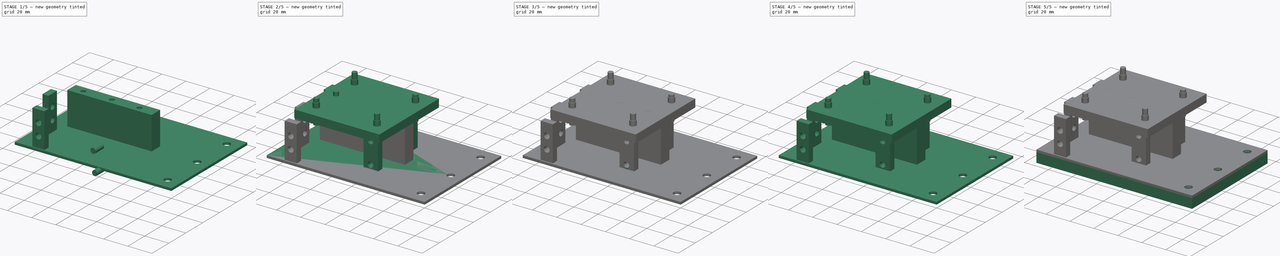
[diagram: build sequence overview — one tinted view per stage of 5, left to right]
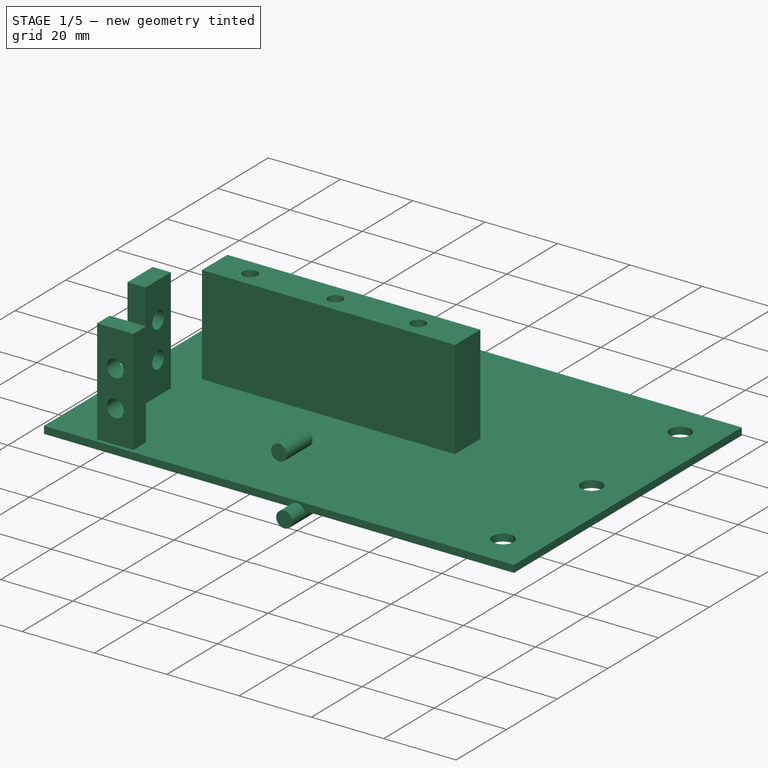
[diagram: stage 1 of 5 — iso view after this stage's code; geometry added in this stage tinted green]
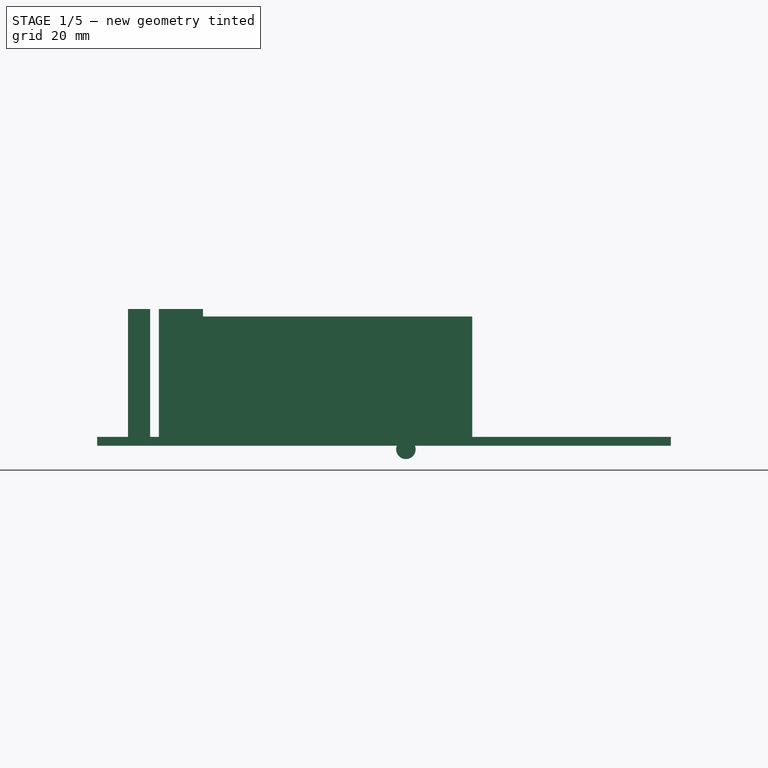
[diagram: stage 1 of 5 — front view after this stage's code; geometry added in this stage tinted green]
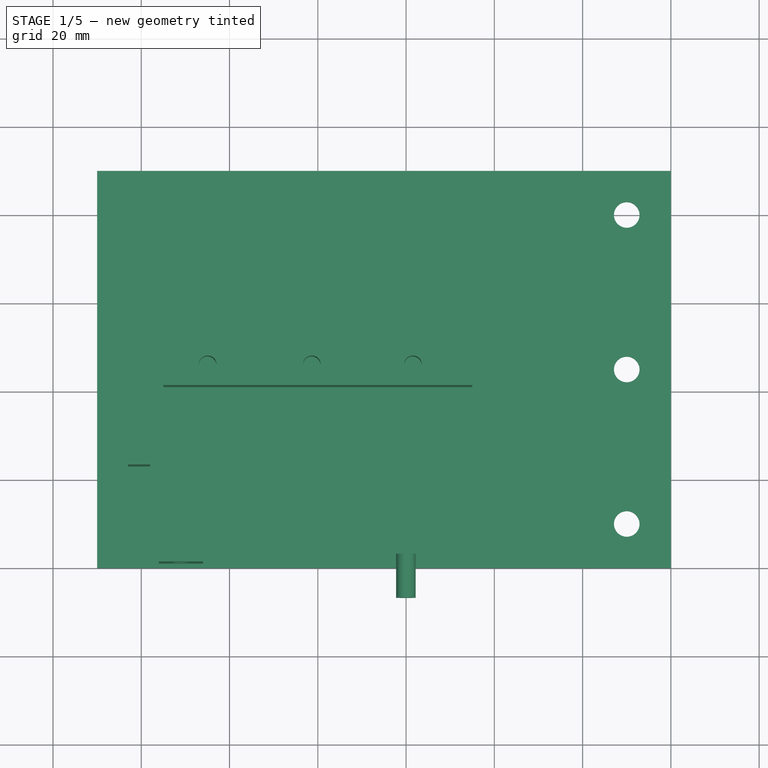
[diagram: stage 1 of 5 — top view after this stage's code; geometry added in this stage tinted green]
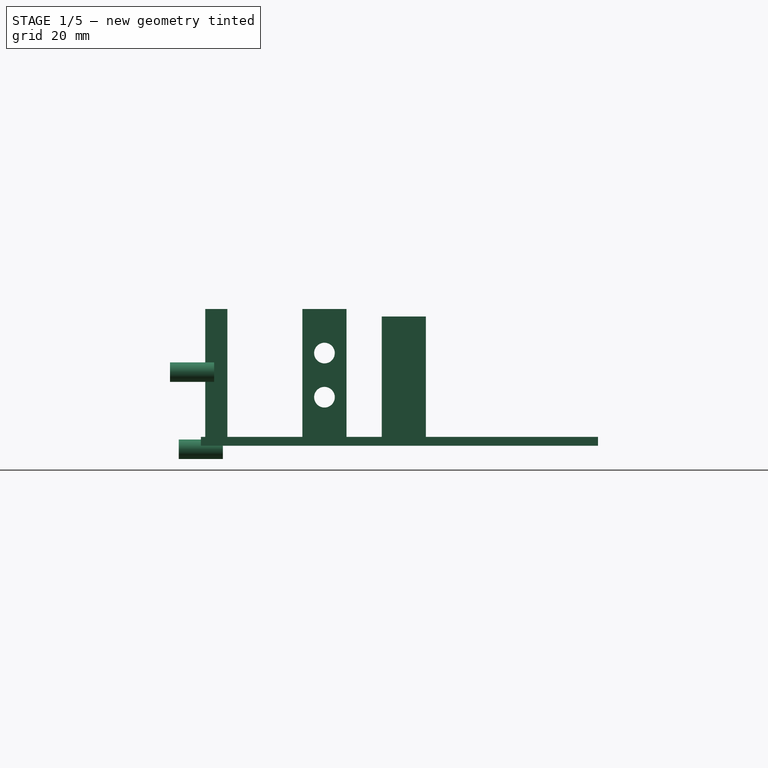
[diagram: stage 1 of 5 — right view after this stage's code; geometry added in this stage tinted green]
FCSTD DOCUMENT  (FreeCAD 0.20R29410 (Git))
Label: Base trasera
License: Creative Commons Attribution-ShareAlike
LicenseURL: http://creativecommons.org/licenses/by-sa/4.0/
objects: Part::Extrusion×70, Sketcher::SketchObject×49, Part::Cut×45, Part::MultiFuse×25
note: 189 computed .brp shape members not serialized (recipe doc carries the construction recipe); baked Part::Feature solids carry a one-line shape summary decoded from their .brp

FEATURE [Sketcher::SketchObject] Sketch
  FullyConstrained = false
  sketch-geometry (4):
    g0: LineSegment StartX=0 StartY=0 StartZ=0 EndX=130 EndY=0 EndZ=0
    g1: LineSegment StartX=130 StartY=0 StartZ=0 EndX=130 EndY=90 EndZ=0
    g2: LineSegment StartX=130 StartY=90 StartZ=0 EndX=0 EndY=90 EndZ=0
    g3: LineSegment StartX=0 StartY=90 StartZ=0 EndX=0 EndY=0 EndZ=0
  constraints (9):
    c: Coincident(g0,g1)
    c: Coincident(g1,g2)
    c: Coincident(g2,g3)
    c: Coincident(g3,g0)
    c: Horizontal(g0)
    c: Horizontal(g2)
    c: Vertical(g1)
    c: Vertical(g3)
    c: Coincident(g0,g-1)
FEATURE [Part::Extrusion] Extrude  label="Base trasera"
  Base = -> Sketch
  Dir = (0,0,1)
  DirMode = 2
  FaceMakerClass = Part::FaceMakerBullseye
  LengthFwd = 10
  LengthRev = 0
  Solid = true
  Symmetric = false
FEATURE [Sketcher::SketchObject] Sketch004
  FullyConstrained = false
  MapMode = 5
  Placement = pos=(0,0,10) rot=(0,0,1;0rad)
  Support = -> [Extrude]
  sketch-geometry (4):
    g0: LineSegment StartX=120 StartY=80.0205 StartZ=0 EndX=120 EndY=10 EndZ=0
    g1: Circle CenterX=120 CenterY=80.0205 CenterZ=0 NormalX=0 NormalY=0 NormalZ=1 AngleXU=0 Radius=2.9
    g2: Circle CenterX=120 CenterY=45.0103 CenterZ=0 NormalX=0 NormalY=0 NormalZ=1 AngleXU=0 Radius=2.9
    g3: Circle CenterX=120 CenterY=10 CenterZ=0 NormalX=0 NormalY=0 NormalZ=1 AngleXU=0 Radius=2.9
  constraints (7):
    c: Vertical(g0)
    c: Coincident(g1,g0)
    c: Coincident(g3,g0)
    c: Symmetric(g0,g0,g2)
    c: Diameter(g1) = 5.8
    c: Equal(g1,g2)
    c: Equal(g2,g3)
FEATURE [Part::Extrusion] Extrude006  label="Tornillos"
  Base = -> Sketch004
  Dir = (0,0,1)
  DirMode = 2
  FaceMakerClass = Part::FaceMakerBullseye
  LengthFwd = 50
  LengthRev = 0
  Placement = pos=(0,0,-31) rot=(0,0,1;0rad)
  Solid = true
  Symmetric = false
FEATURE [Part::Cut] Cut  label="Base trasera001"
  Base = -> Extrude
  Placement = pos=(-110,0,-2) rot=(0,0,1;0rad)
  Refine = true
  Tool = -> Extrude006
FEATURE [Sketcher::SketchObject] Sketch014
  FullyConstrained = false
  Placement = pos=(0,0,0) rot=(1,0,0;1.5708rad)
  sketch-geometry (8):
    g0: LineSegment StartX=-100 StartY=10 StartZ=0 EndX=-100 EndY=37.3557 EndZ=0
    g1: LineSegment StartX=-100 StartY=37.3557 StartZ=0 EndX=-130 EndY=37.3557 EndZ=0
    g2: LineSegment StartX=-130 StartY=37.3557 StartZ=0 EndX=-130 EndY=43.9132 EndZ=0
    g3: LineSegment StartX=-130 StartY=43.9132 StartZ=0 EndX=-60 EndY=43.9132 EndZ=0
    g4: LineSegment StartX=-60 StartY=43.9132 StartZ=0 EndX=-60 EndY=37.3557 EndZ=0
    g5: LineSegment StartX=-60 StartY=37.3557 StartZ=0 EndX=-90 EndY=37.3557 EndZ=0
    g6: LineSegment StartX=-90 StartY=37.3557 StartZ=0 EndX=-90 EndY=10 EndZ=0
    g7: LineSegment StartX=-90 StartY=10 StartZ=0 EndX=-100 EndY=10 EndZ=0
  constraints (17):
    c: Vertical(g0)
    c: Coincident(g1,g0)
    c: Horizontal(g1)
    c: Coincident(g1,g2)
    c: Vertical(g2)
    c: Coincident(g2,g3)
    c: Horizontal(g3)
    c: Coincident(g3,g4)
    c: Vertical(g4)
    c: Coincident(g4,g5)
    c: Horizontal(g5)
    c: Coincident(g5,g6)
    c: Vertical(g6)
    c: Coincident(g6,g7)
    c: Coincident(g7,g0)
    c: Horizontal(g7)
    c: Equal(g6,g0)
FEATURE [Part::Extrusion] Extrude013  label="Base placa roja"
  Base = -> Sketch014
  Dir = (0,-1,-3e-16)
  DirMode = 2
  FaceMakerClass = Part::FaceMakerBullseye
  LengthFwd = 70
  LengthRev = 0
  Placement = pos=(-25,-49,-2) rot=(0,0,-1;1.5708rad)
  Solid = true
  Symmetric = false
FEATURE [Part::MultiFuse] Fusion  label="Base trasera002"
  Refine = true
  Shapes = -> [Cut,Extrude013]
FEATURE [Sketcher::SketchObject] Sketch015
  FullyConstrained = false
  MapMode = 5
  Placement = pos=(-1.38e-14,0,41.9132) rot=(0,0,1;0rad)
  Support = -> [Fusion]
  sketch-geometry (4):
    g0: Circle CenterX=-84.9863 CenterY=67.434 CenterZ=0 NormalX=0 NormalY=0 NormalZ=1 AngleXU=0 Radius=2.5
    g1: Circle CenterX=-85.0131 CenterY=22.4995 CenterZ=0 NormalX=0 NormalY=0 NormalZ=1 AngleXU=0 Radius=2.5
    g2: Circle CenterX=-35.0242 CenterY=22.5424 CenterZ=0 NormalX=0 NormalY=0 NormalZ=1 AngleXU=0 Radius=2.5
    g3: Circle CenterX=-34.9105 CenterY=67.5989 CenterZ=0 NormalX=0 NormalY=0 NormalZ=1 AngleXU=0 Radius=2.5
  constraints (4):
    c: Equal(g0,g1)
    c: Equal(g1,g2)
    c: Equal(g2,g3)
    c: Diameter(g0) = 5
FEATURE [Part::Extrusion] Extrude014  label="Tornillos004"
  Base = -> Sketch015
  Dir = (-3e-16,0,1)
  DirMode = 2
  FaceMakerClass = Part::FaceMakerBullseye
  LengthFwd = 8
  LengthRev = 0
  Placement = pos=(0,0,-4) rot=(0,0,1;0rad)
  Solid = true
  Symmetric = false
FEATURE [Part::MultiFuse] Fusion001
  Refine = true
  Shapes = -> [Extrude014,Fusion]
FEATURE [Sketcher::SketchObject] Sketch059
  FullyConstrained = false
  Placement = pos=(0,0,0) rot=(0.57735,0.57735,0.57735;2.0944rad)
  sketch-geometry (4):
    g0: LineSegment StartX=-15.4009 StartY=8.53528 StartZ=0 EndX=-5.40092 EndY=8.53528 EndZ=0
    g1: LineSegment StartX=-5.40092 StartY=8.53528 StartZ=0 EndX=-5.40092 EndY=35.8953 EndZ=0
    g2: LineSegment StartX=-5.40092 StartY=35.8953 StartZ=0 EndX=-15.4009 EndY=35.8953 EndZ=0
    g3: LineSegment StartX=-15.4009 StartY=35.8953 StartZ=0 EndX=-15.4009 EndY=8.53528 EndZ=0
  constraints (9):
    c: Coincident(g0,g1)
    c: Coincident(g1,g2)
    c: Coincident(g2,g3)
    c: Coincident(g3,g0)
    c: Horizontal(g0)
    c: Horizontal(g2)
    c: Vertical(g1)
    c: Vertical(g3)
    c: DistanceY(g1,g1) = 27.36
FEATURE [Part::Extrusion] Extrude065
  Base = -> Sketch059
  Dir = (1,0,0)
  DirMode = 2
  FaceMakerClass = Part::FaceMakerBullseye
  LengthFwd = 70
  LengthRev = 0
  Placement = pos=(-95,56.4,-0.3) rot=(0,0,1;0rad)
  Solid = true
  Symmetric = false
FEATURE [Part::Extrusion] Extrude075  label="Tornillo016"
  Base = -> Sketch016
  Dir = (-3e-16,0,1)
  DirMode = 2
  FaceMakerClass = Part::FaceMakerBullseye
  LengthFwd = 20
  LengthRev = 0
  Placement = pos=(0,-21.8,-26) rot=(0,0,1;0rad)
  Solid = true
  Symmetric = false
FEATURE [Part::Extrusion] Extrude076  label="Tornillo017"
  Base = -> Sketch016
  Dir = (-3e-16,0,1)
  DirMode = 2
  FaceMakerClass = Part::FaceMakerBullseye
  LengthFwd = 20
  LengthRev = 0
  Placement = pos=(23.6,-21.8,-25.9) rot=(0,0,1;0rad)
  Solid = true
  Symmetric = false
FEATURE [Part::Extrusion] Extrude077  label="Tornillo018"
  Base = -> Sketch016
  Dir = (-3e-16,0,1)
  DirMode = 2
  FaceMakerClass = Part::FaceMakerBullseye
  LengthFwd = 20
  LengthRev = 0
  Placement = pos=(46.5,-21.8,-26) rot=(0,0,1;0rad)
  Solid = true
  Symmetric = false
FEATURE [Part::Cut] Cut043
  Base = -> Extrude065
  Refine = true
  Tool = -> Extrude075
FEATURE [Part::Cut] Cut044
  Base = -> Cut043
  Refine = true
  Tool = -> Extrude076
FEATURE [Part::Cut] Cut045  label="BBBBBBBBB"
  Base = -> Cut044
  Placement = pos=(0,0,-0.3) rot=(0,0,1;0rad)
  Refine = true
  Tool = -> Extrude077
FEATURE [Sketcher::SketchObject] Sketch066
  FullyConstrained = false
  Placement = pos=(0,0,0) rot=(1,0,0;1.5708rad)
  sketch-geometry (4):
    g0: LineSegment StartX=-140 StartY=10 StartZ=0 EndX=-130 EndY=10 EndZ=0
    g1: LineSegment StartX=-130 StartY=10 StartZ=0 EndX=-130 EndY=40 EndZ=0
    g2: LineSegment StartX=-130 StartY=40 StartZ=0 EndX=-140 EndY=40 EndZ=0
    g3: LineSegment StartX=-140 StartY=40 StartZ=0 EndX=-140 EndY=10 EndZ=0
  constraints (8):
    c: Coincident(g0,g1)
    c: Coincident(g1,g2)
    c: Coincident(g2,g3)
    c: Coincident(g3,g0)
    c: Horizontal(g0)
    c: Horizontal(g2)
    c: Vertical(g1)
    c: Vertical(g3)
FEATURE [Part::Extrusion] Extrude082  label="Soporte017"
  Base = -> Sketch066
  Dir = (0,-1,-3e-16)
  DirMode = 2
  FaceMakerClass = Part::FaceMakerBullseye
  LengthFwd = 5
  LengthRev = 0
  Placement = pos=(-96,-107,0) rot=(0,0,-1;1.5708rad)
  Solid = true
  Symmetric = false
FEATURE [Sketcher::SketchObject] Sketch067
  FullyConstrained = false
  MapMode = 5
  Placement = pos=(-101,-107,-1.1e-15) rot=(0.57735,-0.57735,-0.57735;2.0944rad)
  Support = -> [Extrude082]
  sketch-geometry (4):
    g0: LineSegment StartX=-140.012 StartY=30 StartZ=0 EndX=-130 EndY=30 EndZ=0
    g1: Circle CenterX=-135.006 CenterY=30 CenterZ=0 NormalX=0 NormalY=0 NormalZ=1 AngleXU=0 Radius=2.34
    g2: LineSegment StartX=-140 StartY=20 StartZ=0 EndX=-130.017 EndY=20 EndZ=0
    g3: Circle CenterX=-135.008 CenterY=20 CenterZ=0 NormalX=0 NormalY=0 NormalZ=1 AngleXU=0 Radius=2.34
  constraints (6):
    c: Horizontal(g0)
    c: Symmetric(g0,g0,g1)
    c: Horizontal(g2)
    c: Symmetric(g2,g2,g3)
    c: Equal(g1,g3)
    c: Diameter(g3) = 4.68
FEATURE [Part::Extrusion] Extrude083  label="Tornillos016"
  Base = -> Sketch067
  Dir = (-1,2e-16,-2e-16)
  DirMode = 2
  FaceMakerClass = Part::FaceMakerBullseye
  LengthFwd = 20
  LengthRev = 0
  Placement = pos=(17,0,0) rot=(0,0,1;0rad)
  Solid = true
  Symmetric = false
FEATURE [Part::Cut] Cut053  label="Soporte014"
  Base = -> Extrude082
  Placement = pos=(-2,0,-3) rot=(0,0,1;0rad)
  Refine = true
  Tool = -> Extrude083
FEATURE [Sketcher::SketchObject] Sketch070
  FullyConstrained = false
  Placement = pos=(0,0,0) rot=(1,0,0;1.5708rad)
  sketch-geometry (4):
    g0: LineSegment StartX=-140 StartY=10 StartZ=0 EndX=-130 EndY=10 EndZ=0
    g1: LineSegment StartX=-130 StartY=10 StartZ=0 EndX=-130 EndY=40 EndZ=0
    g2: LineSegment StartX=-130 StartY=40 StartZ=0 EndX=-140 EndY=40 EndZ=0
    g3: LineSegment StartX=-140 StartY=40 StartZ=0 EndX=-140 EndY=10 EndZ=0
  constraints (8):
    c: Coincident(g0,g1)
    c: Coincident(g1,g2)
    c: Coincident(g2,g3)
    c: Coincident(g3,g0)
    c: Horizontal(g0)
    c: Horizontal(g2)
    c: Vertical(g1)
    c: Vertical(g3)
FEATURE [Part::Extrusion] Extrude086  label="Soporte019"
  Base = -> Sketch070
  Dir = (0,-1,-3e-16)
  DirMode = 2
  FaceMakerClass = Part::FaceMakerBullseye
  LengthFwd = 5
  LengthRev = 0
  Placement = pos=(-96,-107,0) rot=(0,0,-1;1.5708rad)
  Solid = true
  Symmetric = false
FEATURE [Sketcher::SketchObject] Sketch071
  FullyConstrained = false
  MapMode = 5
  Placement = pos=(-101,-107,-1.1e-15) rot=(0.57735,-0.57735,-0.57735;2.0944rad)
  Support = -> [Extrude086]
  sketch-geometry (4):
    g0: LineSegment StartX=-140.012 StartY=30 StartZ=0 EndX=-130 EndY=30 EndZ=0
    g1: Circle CenterX=-135.006 CenterY=30 CenterZ=0 NormalX=0 NormalY=0 NormalZ=1 AngleXU=0 Radius=2.34
    g2: LineSegment StartX=-140 StartY=20 StartZ=0 EndX=-130.017 EndY=20 EndZ=0
    g3: Circle CenterX=-135.008 CenterY=20 CenterZ=0 NormalX=0 NormalY=0 NormalZ=1 AngleXU=0 Radius=2.34
  constraints (6):
    c: Horizontal(g0)
    c: Symmetric(g0,g0,g1)
    c: Horizontal(g2)
    c: Symmetric(g2,g2,g3)
    c: Equal(g1,g3)
    c: Diameter(g3) = 4.68
FEATURE [Part::Extrusion] Extrude087  label="Tornillos018"
  Base = -> Sketch071
  Dir = (-1,2e-16,-2e-16)
  DirMode = 2
  FaceMakerClass = Part::FaceMakerBullseye
  LengthFwd = 20
  LengthRev = 0
  Placement = pos=(17,0,0) rot=(0,0,1;0rad)
  Solid = true
  Symmetric = false
FEATURE [Part::Cut] Cut052  label="Soporte013"
  Base = -> Extrude086
  Placement = pos=(-119,-95,-3) rot=(0,0,-1;1.5708rad)
  Refine = true
  Tool = -> Extrude087
FEATURE [Sketcher::SketchObject] Sketch074
  FullyConstrained = false
  sketch-geometry (4):
    g0: LineSegment StartX=0 StartY=0 StartZ=0 EndX=130 EndY=0 EndZ=0
    g1: LineSegment StartX=130 StartY=0 StartZ=0 EndX=130 EndY=90 EndZ=0
    g2: LineSegment StartX=130 StartY=90 StartZ=0 EndX=0 EndY=90 EndZ=0
    g3: LineSegment StartX=0 StartY=90 StartZ=0 EndX=0 EndY=0 EndZ=0
  constraints (9):
    c: Coincident(g0,g1)
    c: Coincident(g1,g2)
    c: Coincident(g2,g3)
    c: Coincident(g3,g0)
    c: Horizontal(g0)
    c: Horizontal(g2)
    c: Vertical(g1)
    c: Vertical(g3)
    c: Coincident(g0,g-1)
FEATURE [Part::Extrusion] Extrude090  label="Base trasera009"
  Base = -> Sketch074
  Dir = (0,0,1)
  DirMode = 2
  FaceMakerClass = Part::FaceMakerBullseye
  LengthFwd = 2
  LengthRev = 0
  Solid = true
  Symmetric = false
FEATURE [Sketcher::SketchObject] Sketch075
  FullyConstrained = false
  MapMode = 5
  Placement = pos=(0,0,2) rot=(0,0,1;0rad)
  Support = -> [Extrude090]
  sketch-geometry (4):
    g0: LineSegment StartX=120 StartY=80.0205 StartZ=0 EndX=120 EndY=10 EndZ=0
    g1: Circle CenterX=120 CenterY=80.0205 CenterZ=0 NormalX=0 NormalY=0 NormalZ=1 AngleXU=0 Radius=2.9
    g2: Circle CenterX=120 CenterY=45.0103 CenterZ=0 NormalX=0 NormalY=0 NormalZ=1 AngleXU=0 Radius=2.9
    g3: Circle CenterX=120 CenterY=10 CenterZ=0 NormalX=0 NormalY=0 NormalZ=1 AngleXU=0 Radius=2.9
  constraints (7):
    c: Vertical(g0)
    c: Coincident(g1,g0)
    c: Coincident(g3,g0)
    c: Symmetric(g0,g0,g2)
    c: Diameter(g1) = 5.8
    c: Equal(g1,g2)
    c: Equal(g2,g3)
FEATURE [Part::Extrusion] Extrude091  label="Tornillos020"
  Base = -> Sketch075
  Dir = (0,0,1)
  DirMode = 2
  FaceMakerClass = Part::FaceMakerBullseye
  LengthFwd = 50
  LengthRev = 0
  Placement = pos=(0,0,-31) rot=(0,0,1;0rad)
  Solid = true
  Symmetric = false
FEATURE [Part::Cut] Cut047  label="Base trasera007"
  Base = -> Extrude090
  Placement = pos=(-110,0,6) rot=(0,0,1;0rad)
  Refine = true
  Tool = -> Extrude091
FEATURE [Sketcher::SketchObject] Sketch078
  FullyConstrained = false
  Placement = pos=(0,0,0) rot=(1,0,0;1.5708rad)
  sketch-geometry (1):
    g0: Circle CenterX=-30.2422 CenterY=20.0161 CenterZ=0 NormalX=0 NormalY=0 NormalZ=1 AngleXU=0 Radius=2.21
  constraints (1):
    c: Diameter(g0) = 4.42
FEATURE [Part::Extrusion] Extrude099
  Base = -> Sketch078
  Dir = (0,-1,-3e-16)
  DirMode = 2
  FaceMakerClass = Part::FaceMakerBullseye
  LengthFwd = 10
  LengthRev = 0
  Placement = pos=(-9.8,3,2.68) rot=(0,0,1;0rad)
  Solid = true
  Symmetric = false
FEATURE [Sketcher::SketchObject] Sketch079
  FullyConstrained = false
  Placement = pos=(0,0,0) rot=(1,0,0;1.5708rad)
  sketch-geometry (1):
    g0: Circle CenterX=-30.2422 CenterY=20.0161 CenterZ=0 NormalX=0 NormalY=0 NormalZ=1 AngleXU=0 Radius=2.21
  constraints (1):
    c: Diameter(g0) = 4.42
FEATURE [Part::Extrusion] Extrude100
  Base = -> Sketch079
  Dir = (0,-1,-3e-16)
  DirMode = 2
  FaceMakerClass = Part::FaceMakerBullseye
  LengthFwd = 10
  LengthRev = 0
  Placement = pos=(-9.8,5,-14.82) rot=(0,0,1;0rad)
  Solid = true
  Symmetric = false
FEATURE [Part::MultiFuse] Fusion019
  Refine = true
  Shapes = -> [Cut047,Cut045]
FEATURE [Part::MultiFuse] Fusion020
  Refine = true
  Shapes = -> [Fusion019,Cut053]
FEATURE [Part::MultiFuse] Fusion021
  Refine = true
  Shapes = -> [Fusion020,Cut052]
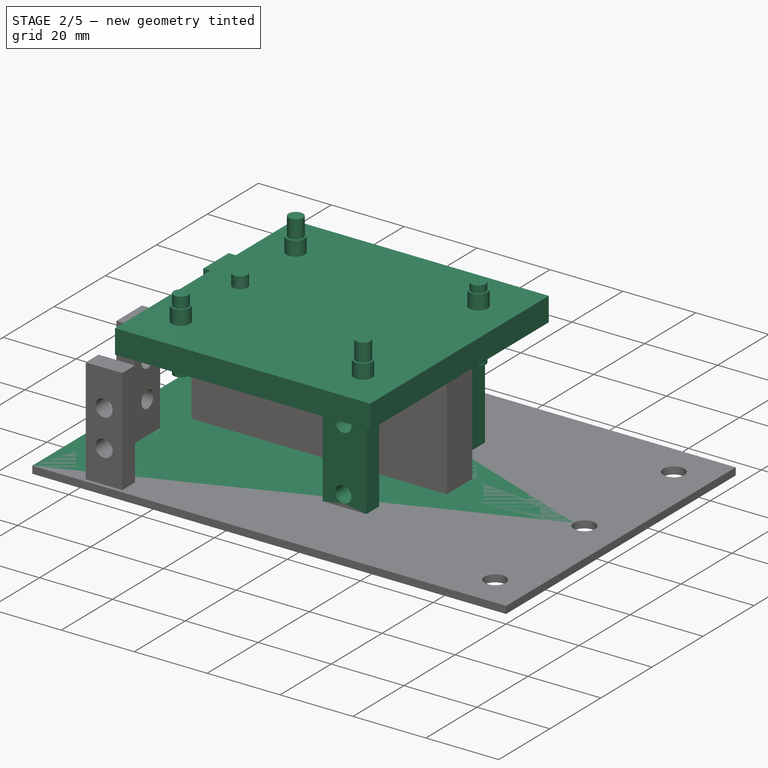
[diagram: stage 2 of 5 — iso view after this stage's code; geometry added in this stage tinted green]
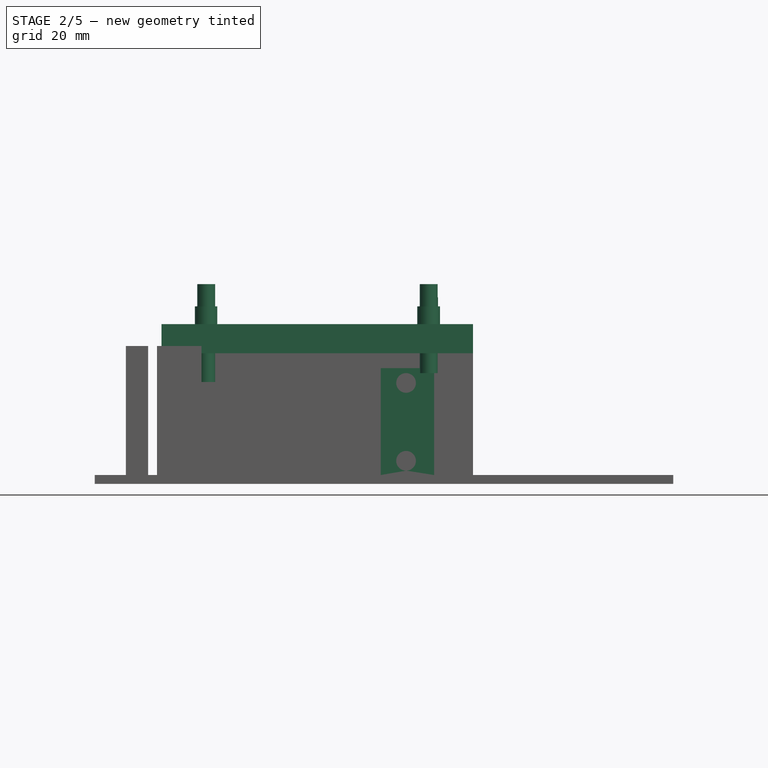
[diagram: stage 2 of 5 — front view after this stage's code; geometry added in this stage tinted green]
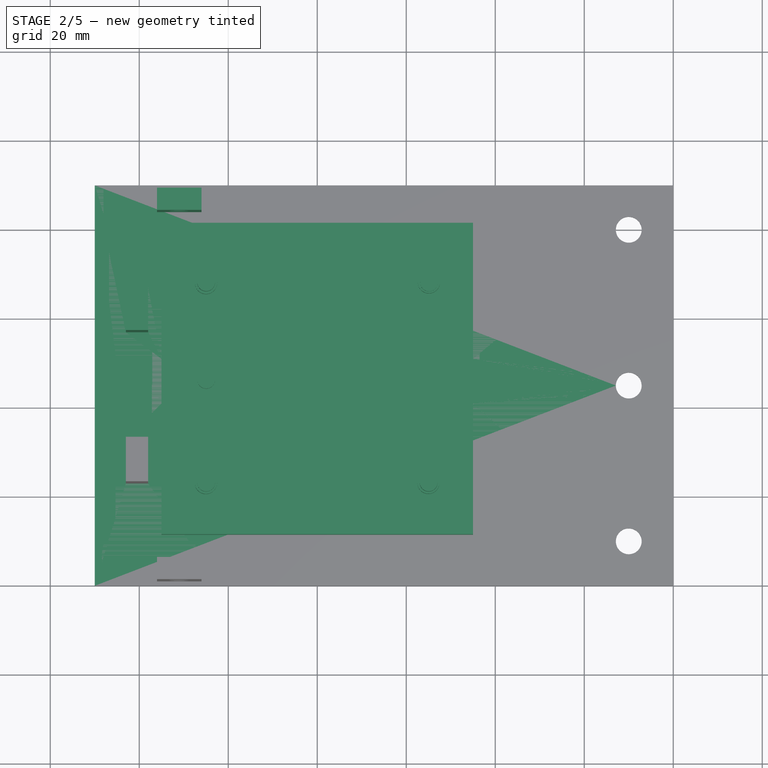
[diagram: stage 2 of 5 — top view after this stage's code; geometry added in this stage tinted green]
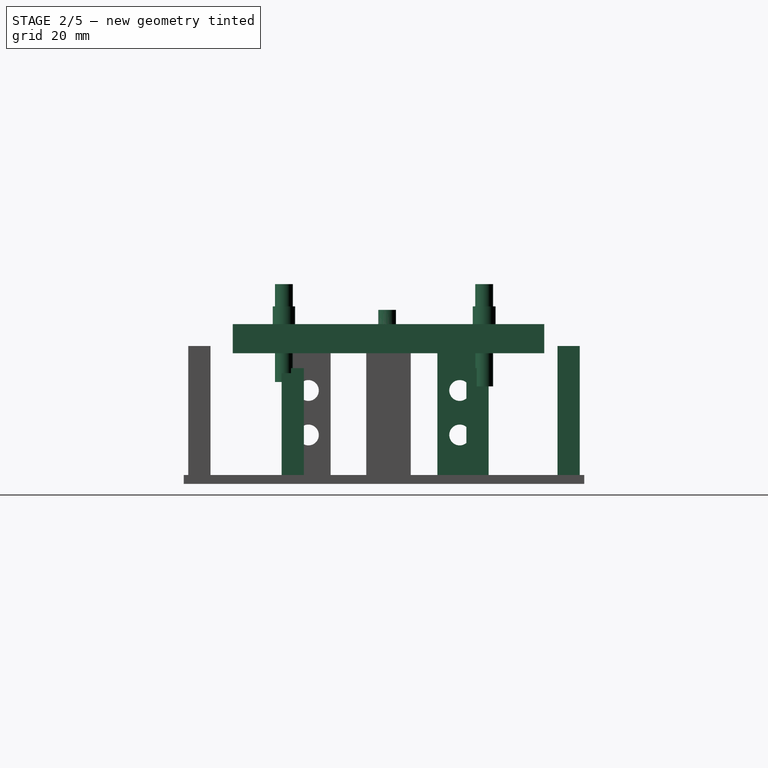
[diagram: stage 2 of 5 — right view after this stage's code; geometry added in this stage tinted green]
FEATURE [Sketcher::SketchObject] Sketch049
  FullyConstrained = false
  sketch-geometry (4):
    g0: LineSegment StartX=0 StartY=0 StartZ=0 EndX=130 EndY=0 EndZ=0
    g1: LineSegment StartX=130 StartY=0 StartZ=0 EndX=130 EndY=90 EndZ=0
    g2: LineSegment StartX=130 StartY=90 StartZ=0 EndX=0 EndY=90 EndZ=0
    g3: LineSegment StartX=0 StartY=90 StartZ=0 EndX=0 EndY=0 EndZ=0
  constraints (9):
    c: Coincident(g0,g1)
    c: Coincident(g1,g2)
    c: Coincident(g2,g3)
    c: Coincident(g3,g0)
    c: Horizontal(g0)
    c: Horizontal(g2)
    c: Vertical(g1)
    c: Vertical(g3)
    c: Coincident(g0,g-1)
FEATURE [Sketcher::SketchObject] Sketch050
  FullyConstrained = false
  sketch-geometry (4):
    g0: LineSegment StartX=0 StartY=0 StartZ=0 EndX=130 EndY=0 EndZ=0
    g1: LineSegment StartX=130 StartY=0 StartZ=0 EndX=130 EndY=90 EndZ=0
    g2: LineSegment StartX=130 StartY=90 StartZ=0 EndX=0 EndY=90 EndZ=0
    g3: LineSegment StartX=0 StartY=90 StartZ=0 EndX=0 EndY=0 EndZ=0
  constraints (9):
    c: Coincident(g0,g1)
    c: Coincident(g1,g2)
    c: Coincident(g2,g3)
    c: Coincident(g3,g0)
    c: Horizontal(g0)
    c: Horizontal(g2)
    c: Vertical(g1)
    c: Vertical(g3)
    c: Coincident(g0,g-1)
FEATURE [Part::Extrusion] Extrude051  label="Base trasera005"
  Base = -> Sketch050
  Dir = (0,0,1)
  DirMode = 2
  FaceMakerClass = Part::FaceMakerBullseye
  LengthFwd = 2
  LengthRev = 0
  Solid = true
  Symmetric = false
FEATURE [Part::Extrusion] Extrude072  label="Tornillo013"
  Base = -> Sketch016
  Dir = (-3e-16,0,1)
  DirMode = 2
  FaceMakerClass = Part::FaceMakerBullseye
  LengthFwd = 20
  LengthRev = 0
  Placement = pos=(0,-21.8,-20.8) rot=(0,0,1;0rad)
  Solid = true
  Symmetric = false
FEATURE [Part::Extrusion] Extrude052  label="Tornillos011"
  Base = -> Sketch051
  Dir = (0,0,1)
  DirMode = 2
  FaceMakerClass = Part::FaceMakerBullseye
  LengthFwd = 50
  LengthRev = 0
  Placement = pos=(0,0,-31) rot=(0,0,1;0rad)
  Solid = true
  Symmetric = false
FEATURE [Part::Cut] Cut021  label="Base trasera004"
  Base = -> Extrude051
  Placement = pos=(-110,0,6) rot=(0,0,1;0rad)
  Refine = true
  Tool = -> Extrude052
FEATURE [Part::Extrusion] Extrude053  label="Base placa roja001"
  Base = -> Sketch052
  Dir = (0,-1,2e-16)
  DirMode = 2
  FaceMakerClass = Part::FaceMakerBullseye
  LengthFwd = 70
  LengthRev = 0
  Placement = pos=(-25,-49,-2) rot=(0,0,-1;1.5708rad)
  Solid = true
  Symmetric = false
FEATURE [Sketcher::SketchObject] Sketch064
  FullyConstrained = false
  MapMode = 5
  Placement = pos=(-1.38e-14,0,41.9132) rot=(0,0,1;0rad)
  sketch-geometry (4):
    g0: Circle CenterX=-84.9863 CenterY=67.434 CenterZ=0 NormalX=0 NormalY=0 NormalZ=1 AngleXU=0 Radius=2.5
    g1: Circle CenterX=-85.0131 CenterY=22.4995 CenterZ=0 NormalX=0 NormalY=0 NormalZ=1 AngleXU=0 Radius=2.5
    g2: Circle CenterX=-35.0242 CenterY=22.5424 CenterZ=0 NormalX=0 NormalY=0 NormalZ=1 AngleXU=0 Radius=2.5
    g3: Circle CenterX=-34.9105 CenterY=67.5989 CenterZ=0 NormalX=0 NormalY=0 NormalZ=1 AngleXU=0 Radius=2.5
  constraints (4):
    c: Equal(g0,g1)
    c: Equal(g1,g2)
    c: Equal(g2,g3)
    c: Diameter(g0) = 5
FEATURE [Part::Extrusion] Extrude093  label="Tornillos021"
  Base = -> Sketch064
  Dir = (-3e-16,0,1)
  DirMode = 2
  FaceMakerClass = Part::FaceMakerBullseye
  LengthFwd = 8
  LengthRev = 0
  Placement = pos=(0,0,-4) rot=(0,0,1;0rad)
  Solid = true
  Symmetric = false
FEATURE [Sketcher::SketchObject] Sketch065
  FullyConstrained = false
  MapMode = 5
  Placement = pos=(-1.29e-14,0,45.9132) rot=(0,0,1;0rad)
  sketch-geometry (1):
    g0: Circle CenterX=-84.9626 CenterY=67.5048 CenterZ=0 NormalX=0 NormalY=0 NormalZ=1 AngleXU=0 Radius=2.005
  constraints (1):
    c: Diameter(g0) = 4.01
FEATURE [Part::Extrusion] Extrude094  label="Tornillo019"
  Base = -> Sketch065
  Dir = (-3e-16,0,1)
  DirMode = 2
  FaceMakerClass = Part::FaceMakerBullseye
  LengthFwd = 20
  LengthRev = 0
  Placement = pos=(50.1,0,-18) rot=(0,0,1;0rad)
  Solid = true
  Symmetric = false
FEATURE [Part::Extrusion] Extrude095  label="Tornillo020"
  Base = -> Sketch065
  Dir = (-3e-16,0,1)
  DirMode = 2
  FaceMakerClass = Part::FaceMakerBullseye
  LengthFwd = 20
  LengthRev = 0
  Placement = pos=(0,0,-15) rot=(0,0,1;0rad)
  Solid = true
  Symmetric = false
FEATURE [Part::Extrusion] Extrude096  label="Tornillo021"
  Base = -> Sketch065
  Dir = (-3e-16,0,1)
  DirMode = 2
  FaceMakerClass = Part::FaceMakerBullseye
  LengthFwd = 20
  LengthRev = 0
  Placement = pos=(50,-45,-15) rot=(0,0,1;0rad)
  Solid = true
  Symmetric = false
FEATURE [Part::Extrusion] Extrude097  label="Tornillo022"
  Base = -> Sketch065
  Dir = (-3e-16,0,1)
  DirMode = 2
  FaceMakerClass = Part::FaceMakerBullseye
  LengthFwd = 20
  LengthRev = 0
  Placement = pos=(0,-45,-17) rot=(0,0,1;0rad)
  Solid = true
  Symmetric = false
FEATURE [Sketcher::SketchObject] Sketch068
  FullyConstrained = false
  Placement = pos=(0,0,0) rot=(1,0,0;1.5708rad)
  sketch-geometry (4):
    g0: LineSegment StartX=-140 StartY=10 StartZ=0 EndX=-130 EndY=10 EndZ=0
    g1: LineSegment StartX=-130 StartY=10 StartZ=0 EndX=-130 EndY=40 EndZ=0
    g2: LineSegment StartX=-130 StartY=40 StartZ=0 EndX=-140 EndY=40 EndZ=0
    g3: LineSegment StartX=-140 StartY=40 StartZ=0 EndX=-140 EndY=10 EndZ=0
  constraints (8):
    c: Coincident(g0,g1)
    c: Coincident(g1,g2)
    c: Coincident(g2,g3)
    c: Coincident(g3,g0)
    c: Horizontal(g0)
    c: Horizontal(g2)
    c: Vertical(g1)
    c: Vertical(g3)
FEATURE [Part::Extrusion] Extrude084  label="Soporte018"
  Base = -> Sketch068
  Dir = (0,-1,-3e-16)
  DirMode = 2
  FaceMakerClass = Part::FaceMakerBullseye
  LengthFwd = 5
  LengthRev = 0
  Placement = pos=(-96,-107,0) rot=(0,0,-1;1.5708rad)
  Solid = true
  Symmetric = false
FEATURE [Sketcher::SketchObject] Sketch069
  FullyConstrained = false
  MapMode = 5
  Placement = pos=(-101,-107,-1.1e-15) rot=(0.57735,-0.57735,-0.57735;2.0944rad)
  Support = -> [Extrude084]
  sketch-geometry (4):
    g0: LineSegment StartX=-140.012 StartY=30 StartZ=0 EndX=-130 EndY=30 EndZ=0
    g1: Circle CenterX=-135.006 CenterY=30 CenterZ=0 NormalX=0 NormalY=0 NormalZ=1 AngleXU=0 Radius=2.34
    g2: LineSegment StartX=-140 StartY=20 StartZ=0 EndX=-130.017 EndY=20 EndZ=0
    g3: Circle CenterX=-135.008 CenterY=20 CenterZ=0 NormalX=0 NormalY=0 NormalZ=1 AngleXU=0 Radius=2.34
  constraints (6):
    c: Horizontal(g0)
    c: Symmetric(g0,g0,g1)
    c: Horizontal(g2)
    c: Symmetric(g2,g2,g3)
    c: Equal(g1,g3)
    c: Diameter(g3) = 4.68
FEATURE [Part::Extrusion] Extrude085  label="Tornillos017"
  Base = -> Sketch069
  Dir = (-1,2e-16,-2e-16)
  DirMode = 2
  FaceMakerClass = Part::FaceMakerBullseye
  LengthFwd = 20
  LengthRev = 0
  Placement = pos=(17,0,0) rot=(0,0,1;0rad)
  Solid = true
  Symmetric = false
FEATURE [Part::Cut] Cut054  label="Soporte015"
  Base = -> Extrude084
  Placement = pos=(-2,34,-3) rot=(0,0,1;0rad)
  Refine = true
  Tool = -> Extrude085
FEATURE [Sketcher::SketchObject] Sketch072
  FullyConstrained = false
  Placement = pos=(0,0,0) rot=(1,0,0;1.5708rad)
  sketch-geometry (4):
    g0: LineSegment StartX=-140 StartY=10 StartZ=0 EndX=-130 EndY=10 EndZ=0
    g1: LineSegment StartX=-130 StartY=10 StartZ=0 EndX=-130 EndY=40 EndZ=0
    g2: LineSegment StartX=-130 StartY=40 StartZ=0 EndX=-140 EndY=40 EndZ=0
    g3: LineSegment StartX=-140 StartY=40 StartZ=0 EndX=-140 EndY=10 EndZ=0
  constraints (8):
    c: Coincident(g0,g1)
    c: Coincident(g1,g2)
    c: Coincident(g2,g3)
    c: Coincident(g3,g0)
    c: Horizontal(g0)
    c: Horizontal(g2)
    c: Vertical(g1)
    c: Vertical(g3)
FEATURE [Part::Extrusion] Extrude088  label="Soporte020"
  Base = -> Sketch072
  Dir = (0,-1,2e-16)
  DirMode = 2
  FaceMakerClass = Part::FaceMakerBullseye
  LengthFwd = 5
  LengthRev = 0
  Placement = pos=(-96,-107,0) rot=(0,0,-1;1.5708rad)
  Solid = true
  Symmetric = false
FEATURE [Sketcher::SketchObject] Sketch073
  FullyConstrained = false
  MapMode = 5
  Placement = pos=(-101,-107,1.1e-15) rot=(0.57735,-0.57735,-0.57735;2.0944rad)
  Support = -> [Extrude088]
  sketch-geometry (4):
    g0: LineSegment StartX=-140.012 StartY=30 StartZ=0 EndX=-130 EndY=30 EndZ=0
    g1: Circle CenterX=-135.006 CenterY=30 CenterZ=0 NormalX=0 NormalY=0 NormalZ=1 AngleXU=0 Radius=2.34
    g2: LineSegment StartX=-140 StartY=20 StartZ=0 EndX=-130.017 EndY=20 EndZ=0
    g3: Circle CenterX=-135.008 CenterY=20 CenterZ=0 NormalX=0 NormalY=0 NormalZ=1 AngleXU=0 Radius=2.34
  constraints (6):
    c: Horizontal(g0)
    c: Symmetric(g0,g0,g1)
    c: Horizontal(g2)
    c: Symmetric(g2,g2,g3)
    c: Equal(g1,g3)
    c: Diameter(g3) = 4.68
FEATURE [Part::Extrusion] Extrude089  label="Tornillos019"
  Base = -> Sketch073
  Dir = (-1,-2e-16,2e-16)
  DirMode = 2
  FaceMakerClass = Part::FaceMakerBullseye
  LengthFwd = 20
  LengthRev = 0
  Placement = pos=(17,0,0) rot=(0,0,1;0rad)
  Solid = true
  Symmetric = false
FEATURE [Part::Cut] Cut055  label="Soporte016"
  Base = -> Extrude088
  Placement = pos=(-119,-12,-3) rot=(0,0,-1;1.5708rad)
  Refine = true
  Tool = -> Extrude089
FEATURE [Sketcher::SketchObject] Sketch077
  FullyConstrained = false
  Placement = pos=(0,0,0) rot=(1,0,0;1.5708rad)
  sketch-geometry (4):
    g0: LineSegment StartX=-45.7334 StartY=0 StartZ=0 EndX=-33.7334 EndY=0 EndZ=0
    g1: LineSegment StartX=-33.7334 StartY=0 StartZ=0 EndX=-33.7334 EndY=26.0118 EndZ=0
    g2: LineSegment StartX=-33.7334 StartY=26.0118 StartZ=0 EndX=-45.7334 EndY=26.0118 EndZ=0
    g3: LineSegment StartX=-45.7334 StartY=26.0118 StartZ=0 EndX=-45.7334 EndY=0 EndZ=0
  constraints (10):
    c: Coincident(g0,g1)
    c: Coincident(g1,g2)
    c: Coincident(g2,g3)
    c: Coincident(g3,g0)
    c: Horizontal(g0)
    c: Horizontal(g2)
    c: Vertical(g1)
    c: Vertical(g3)
    c: PointOnObject(g0,g-1)
    c: DistanceX(g2,g2) = 12
FEATURE [Part::Extrusion] Extrude098
  Base = -> Sketch077
  Dir = (0,-1,-3e-16)
  DirMode = 2
  FaceMakerClass = Part::FaceMakerBullseye
  LengthFwd = 5
  LengthRev = 0
  Solid = true
  Symmetric = false
FEATURE [Part::Cut] Cut056
  Base = -> Extrude098
  Refine = true
  Tool = -> Extrude099
FEATURE [Part::Cut] Cut057
  Base = -> Cut056
  Placement = pos=(0,27,6) rot=(0,0,1;0rad)
  Refine = true
  Tool = -> Extrude100
FEATURE [Sketcher::SketchObject] Sketch080
  FullyConstrained = false
  Placement = pos=(0,0,0) rot=(1,0,0;1.5708rad)
  sketch-geometry (4):
    g0: LineSegment StartX=-45.7334 StartY=0 StartZ=0 EndX=-33.7334 EndY=0 EndZ=0
    g1: LineSegment StartX=-33.7334 StartY=0 StartZ=0 EndX=-33.7334 EndY=26.0118 EndZ=0
    g2: LineSegment StartX=-33.7334 StartY=26.0118 StartZ=0 EndX=-45.7334 EndY=26.0118 EndZ=0
    g3: LineSegment StartX=-45.7334 StartY=26.0118 StartZ=0 EndX=-45.7334 EndY=0 EndZ=0
  constraints (10):
    c: Coincident(g0,g1)
    c: Coincident(g1,g2)
    c: Coincident(g2,g3)
    c: Coincident(g3,g0)
    c: Horizontal(g0)
    c: Horizontal(g2)
    c: Vertical(g1)
    c: Vertical(g3)
    c: PointOnObject(g0,g-1)
    c: DistanceX(g2,g2) = 12
FEATURE [Part::Extrusion] Extrude101
  Base = -> Sketch080
  Dir = (0,-1,2e-16)
  DirMode = 2
  FaceMakerClass = Part::FaceMakerBullseye
  LengthFwd = 5
  LengthRev = 0
  Solid = true
  Symmetric = false
FEATURE [Sketcher::SketchObject] Sketch081
  FullyConstrained = false
  Placement = pos=(0,0,0) rot=(1,0,0;1.5708rad)
  sketch-geometry (1):
    g0: Circle CenterX=-30.2422 CenterY=20.0161 CenterZ=0 NormalX=0 NormalY=0 NormalZ=1 AngleXU=0 Radius=2.21
  constraints (1):
    c: Diameter(g0) = 4.42
FEATURE [Part::Extrusion] Extrude102
  Base = -> Sketch081
  Dir = (0,-1,-3e-16)
  DirMode = 2
  FaceMakerClass = Part::FaceMakerBullseye
  LengthFwd = 10
  LengthRev = 0
  Placement = pos=(-9.8,3,2.68) rot=(0,0,1;0rad)
  Solid = true
  Symmetric = false
FEATURE [Part::Cut] Cut058
  Base = -> Extrude101
  Refine = true
  Tool = -> Extrude102
FEATURE [Sketcher::SketchObject] Sketch082
  FullyConstrained = false
  Placement = pos=(0,0,0) rot=(1,0,0;1.5708rad)
  sketch-geometry (1):
    g0: Circle CenterX=-30.2422 CenterY=20.0161 CenterZ=0 NormalX=0 NormalY=0 NormalZ=1 AngleXU=0 Radius=2.21
  constraints (1):
    c: Diameter(g0) = 4.42
FEATURE [Part::Extrusion] Extrude103
  Base = -> Sketch082
  Dir = (0,-1,-3e-16)
  DirMode = 2
  FaceMakerClass = Part::FaceMakerBullseye
  LengthFwd = 10
  LengthRev = 0
  Placement = pos=(-9.8,5,-14.82) rot=(0,0,1;0rad)
  Solid = true
  Symmetric = false
FEATURE [Part::Cut] Cut059
  Base = -> Cut058
  Placement = pos=(0,68.5,6) rot=(0,0,1;0rad)
  Refine = true
  Tool = -> Extrude103
FEATURE [Part::MultiFuse] Fusion022
  Refine = true
  Shapes = -> [Fusion021,Cut057]
FEATURE [Part::MultiFuse] Fusion023
  Refine = true
  Shapes = -> [Fusion022,Cut059]
FEATURE [Part::MultiFuse] Fusion024
  Refine = true
  Shapes = -> [Fusion023,Cut054]
FEATURE [Part::MultiFuse] Fusion025  label="IMPRIMIR"
  Refine = true
  Shapes = -> [Fusion024,Cut055]
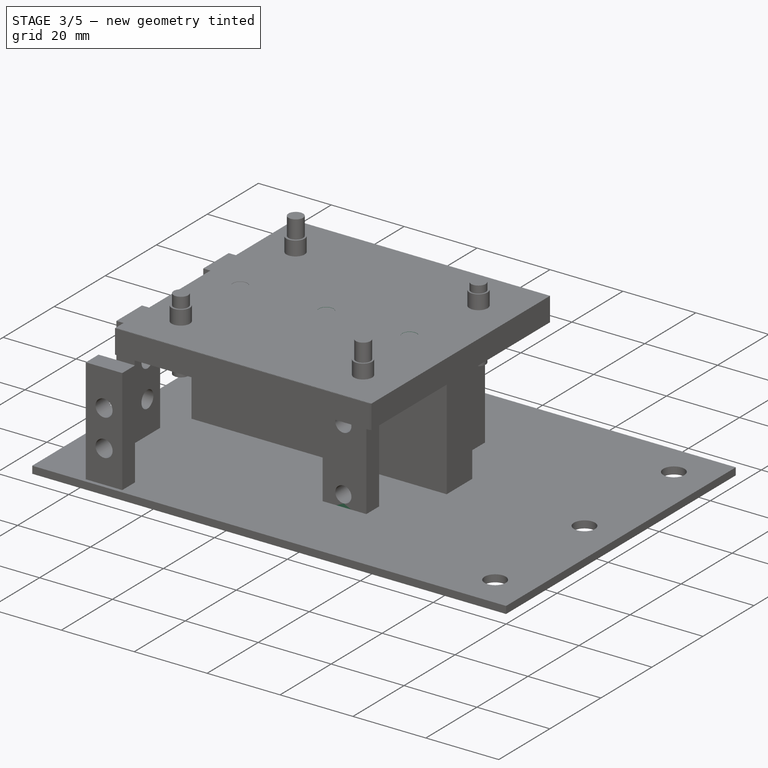
[diagram: stage 3 of 5 — iso view after this stage's code; geometry added in this stage tinted green]
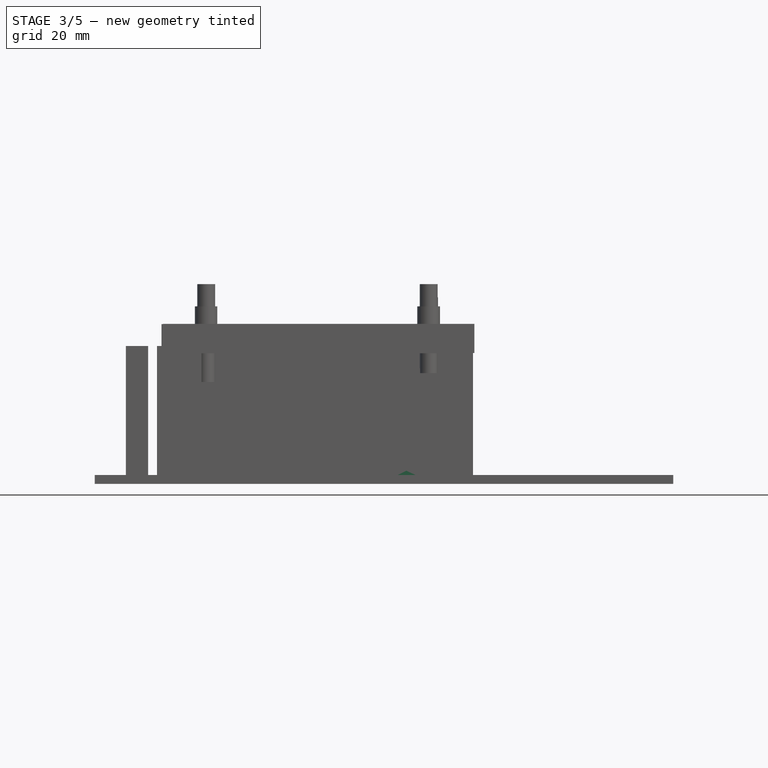
[diagram: stage 3 of 5 — front view after this stage's code; geometry added in this stage tinted green]
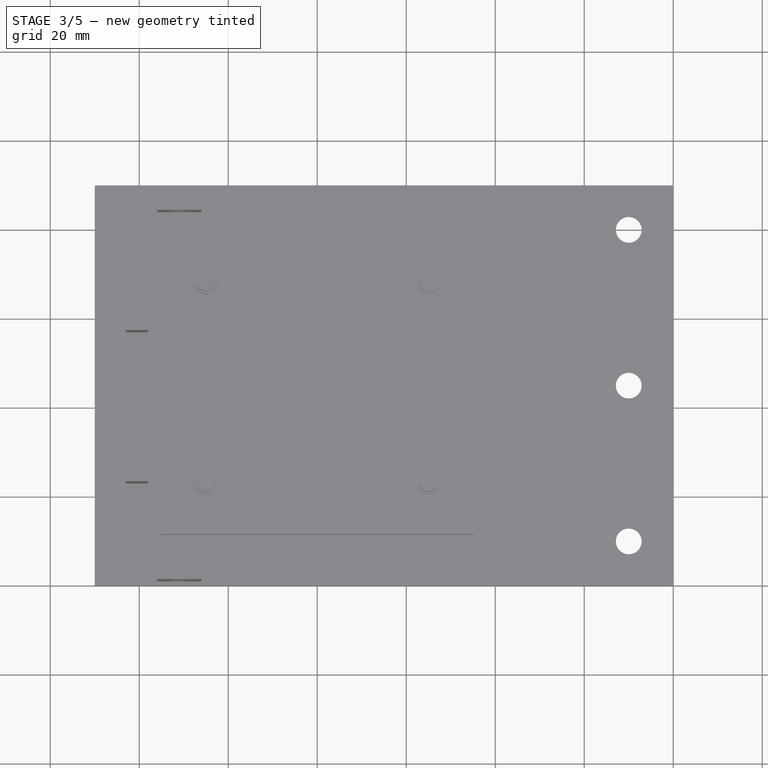
[diagram: stage 3 of 5 — top view after this stage's code; geometry added in this stage tinted green]
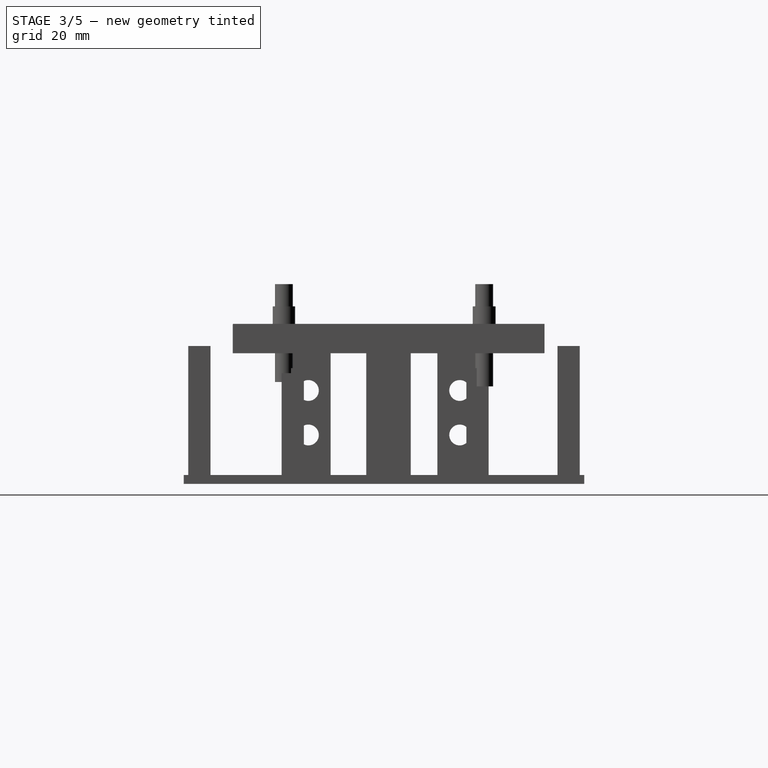
[diagram: stage 3 of 5 — right view after this stage's code; geometry added in this stage tinted green]
FEATURE [Sketcher::SketchObject] Sketch039
  FullyConstrained = false
  Placement = pos=(0,0,0) rot=(1,0,0;1.5708rad)
  sketch-geometry (4):
    g0: LineSegment StartX=-140 StartY=10 StartZ=0 EndX=-130 EndY=10 EndZ=0
    g1: LineSegment StartX=-130 StartY=10 StartZ=0 EndX=-130 EndY=40 EndZ=0
    g2: LineSegment StartX=-130 StartY=40 StartZ=0 EndX=-140 EndY=40 EndZ=0
    g3: LineSegment StartX=-140 StartY=40 StartZ=0 EndX=-140 EndY=10 EndZ=0
  constraints (8):
    c: Coincident(g0,g1)
    c: Coincident(g1,g2)
    c: Coincident(g2,g3)
    c: Coincident(g3,g0)
    c: Horizontal(g0)
    c: Horizontal(g2)
    c: Vertical(g1)
    c: Vertical(g3)
FEATURE [Part::Extrusion] Extrude041  label="Soporte004"
  Base = -> Sketch039
  Dir = (0,-1,-3e-16)
  DirMode = 2
  FaceMakerClass = Part::FaceMakerBullseye
  LengthFwd = 5
  LengthRev = 0
  Placement = pos=(-96,-107,0) rot=(0,0,-1;1.5708rad)
  Solid = true
  Symmetric = false
FEATURE [Sketcher::SketchObject] Sketch040
  FullyConstrained = false
  MapMode = 5
  Placement = pos=(-101,-107,-1.1e-15) rot=(0.57735,-0.57735,-0.57735;2.0944rad)
  Support = -> [Extrude041]
  sketch-geometry (4):
    g0: LineSegment StartX=-140.012 StartY=30 StartZ=0 EndX=-130 EndY=30 EndZ=0
    g1: Circle CenterX=-135.006 CenterY=30 CenterZ=0 NormalX=0 NormalY=0 NormalZ=1 AngleXU=0 Radius=2.34
    g2: LineSegment StartX=-140 StartY=20 StartZ=0 EndX=-130.017 EndY=20 EndZ=0
    g3: Circle CenterX=-135.008 CenterY=20 CenterZ=0 NormalX=0 NormalY=0 NormalZ=1 AngleXU=0 Radius=2.34
  constraints (6):
    c: Horizontal(g0)
    c: Symmetric(g0,g0,g1)
    c: Horizontal(g2)
    c: Symmetric(g2,g2,g3)
    c: Equal(g1,g3)
    c: Diameter(g3) = 4.68
FEATURE [Part::Extrusion] Extrude042  label="Tornillos007"
  Base = -> Sketch040
  Dir = (-1,2e-16,-2e-16)
  DirMode = 2
  FaceMakerClass = Part::FaceMakerBullseye
  LengthFwd = 20
  LengthRev = 0
  Placement = pos=(17,0,0) rot=(0,0,1;0rad)
  Solid = true
  Symmetric = false
FEATURE [Sketcher::SketchObject] Sketch047
  FullyConstrained = false
  Placement = pos=(0,0,0) rot=(1,0,0;1.5708rad)
  sketch-geometry (4):
    g0: LineSegment StartX=-140 StartY=10 StartZ=0 EndX=-130 EndY=10 EndZ=0
    g1: LineSegment StartX=-130 StartY=10 StartZ=0 EndX=-130 EndY=40 EndZ=0
    g2: LineSegment StartX=-130 StartY=40 StartZ=0 EndX=-140 EndY=40 EndZ=0
    g3: LineSegment StartX=-140 StartY=40 StartZ=0 EndX=-140 EndY=10 EndZ=0
  constraints (8):
    c: Coincident(g0,g1)
    c: Coincident(g1,g2)
    c: Coincident(g2,g3)
    c: Coincident(g3,g0)
    c: Horizontal(g0)
    c: Horizontal(g2)
    c: Vertical(g1)
    c: Vertical(g3)
FEATURE [Part::Extrusion] Extrude049  label="Soporte008"
  Base = -> Sketch047
  Dir = (0,-1,2e-16)
  DirMode = 2
  FaceMakerClass = Part::FaceMakerBullseye
  LengthFwd = 5
  LengthRev = 0
  Placement = pos=(-96,-107,0) rot=(0,0,-1;1.5708rad)
  Solid = true
  Symmetric = false
FEATURE [Sketcher::SketchObject] Sketch048
  FullyConstrained = false
  MapMode = 5
  Placement = pos=(-101,-107,1.1e-15) rot=(0.57735,-0.57735,-0.57735;2.0944rad)
  Support = -> [Extrude049]
  sketch-geometry (4):
    g0: LineSegment StartX=-140.012 StartY=30 StartZ=0 EndX=-130 EndY=30 EndZ=0
    g1: Circle CenterX=-135.006 CenterY=30 CenterZ=0 NormalX=0 NormalY=0 NormalZ=1 AngleXU=0 Radius=2.34
    g2: LineSegment StartX=-140 StartY=20 StartZ=0 EndX=-130.017 EndY=20 EndZ=0
    g3: Circle CenterX=-135.008 CenterY=20 CenterZ=0 NormalX=0 NormalY=0 NormalZ=1 AngleXU=0 Radius=2.34
  constraints (6):
    c: Horizontal(g0)
    c: Symmetric(g0,g0,g1)
    c: Horizontal(g2)
    c: Symmetric(g2,g2,g3)
    c: Equal(g1,g3)
    c: Diameter(g3) = 4.68
FEATURE [Part::Extrusion] Extrude050  label="Tornillos010"
  Base = -> Sketch048
  Dir = (-1,-2e-16,2e-16)
  DirMode = 2
  FaceMakerClass = Part::FaceMakerBullseye
  LengthFwd = 20
  LengthRev = 0
  Placement = pos=(17,0,0) rot=(0,0,1;0rad)
  Solid = true
  Symmetric = false
FEATURE [Part::Cut] Cut028  label="Soporte011"
  Base = -> Extrude041
  Placement = pos=(-2,34,-3) rot=(0,0,1;0rad)
  Refine = true
  Tool = -> Extrude042
FEATURE [Part::Cut] Cut029  label="Soporte012"
  Base = -> Extrude049
  Placement = pos=(-119,-12,-3) rot=(0,0,-1;1.5708rad)
  Refine = true
  Tool = -> Extrude050
FEATURE [Sketcher::SketchObject] Sketch053
  FullyConstrained = false
  Placement = pos=(0,0,0) rot=(1,0,0;1.5708rad)
  sketch-geometry (4):
    g0: LineSegment StartX=-45.7334 StartY=0 StartZ=0 EndX=-33.7334 EndY=0 EndZ=0
    g1: LineSegment StartX=-33.7334 StartY=0 StartZ=0 EndX=-33.7334 EndY=26.0118 EndZ=0
    g2: LineSegment StartX=-33.7334 StartY=26.0118 StartZ=0 EndX=-45.7334 EndY=26.0118 EndZ=0
    g3: LineSegment StartX=-45.7334 StartY=26.0118 StartZ=0 EndX=-45.7334 EndY=0 EndZ=0
  constraints (10):
    c: Coincident(g0,g1)
    c: Coincident(g1,g2)
    c: Coincident(g2,g3)
    c: Coincident(g3,g0)
    c: Horizontal(g0)
    c: Horizontal(g2)
    c: Vertical(g1)
    c: Vertical(g3)
    c: PointOnObject(g0,g-1)
    c: DistanceX(g2,g2) = 12
FEATURE [Part::Extrusion] Extrude059
  Base = -> Sketch053
  Dir = (0,-1,-3e-16)
  DirMode = 2
  FaceMakerClass = Part::FaceMakerBullseye
  LengthFwd = 5
  LengthRev = 0
  Solid = true
  Symmetric = false
FEATURE [Sketcher::SketchObject] Sketch054
  FullyConstrained = false
  Placement = pos=(0,0,0) rot=(1,0,0;1.5708rad)
  sketch-geometry (1):
    g0: Circle CenterX=-30.2422 CenterY=20.0161 CenterZ=0 NormalX=0 NormalY=0 NormalZ=1 AngleXU=0 Radius=2.21
  constraints (1):
    c: Diameter(g0) = 4.42
FEATURE [Part::Extrusion] Extrude060
  Base = -> Sketch054
  Dir = (0,-1,-3e-16)
  DirMode = 2
  FaceMakerClass = Part::FaceMakerBullseye
  LengthFwd = 10
  LengthRev = 0
  Placement = pos=(-9.8,3,2.68) rot=(0,0,1;0rad)
  Solid = true
  Symmetric = false
FEATURE [Part::Cut] Cut032
  Base = -> Extrude059
  Refine = true
  Tool = -> Extrude060
FEATURE [Sketcher::SketchObject] Sketch055
  FullyConstrained = false
  Placement = pos=(0,0,0) rot=(1,0,0;1.5708rad)
  sketch-geometry (1):
    g0: Circle CenterX=-30.2422 CenterY=20.0161 CenterZ=0 NormalX=0 NormalY=0 NormalZ=1 AngleXU=0 Radius=2.21
  constraints (1):
    c: Diameter(g0) = 4.42
FEATURE [Part::Extrusion] Extrude061
  Base = -> Sketch055
  Dir = (0,-1,-3e-16)
  DirMode = 2
  FaceMakerClass = Part::FaceMakerBullseye
  LengthFwd = 10
  LengthRev = 0
  Placement = pos=(-9.8,5,-14.82) rot=(0,0,1;0rad)
  Solid = true
  Symmetric = false
FEATURE [Part::Cut] Cut033
  Base = -> Cut032
  Placement = pos=(0,27,6) rot=(0,0,1;0rad)
  Refine = true
  Tool = -> Extrude061
FEATURE [Sketcher::SketchObject] Sketch060
  FullyConstrained = false
  Placement = pos=(0,0,0) rot=(0.57735,0.57735,0.57735;2.0944rad)
  sketch-geometry (4):
    g0: LineSegment StartX=-30.4329 StartY=77.4792 StartZ=0 EndX=-30.4329 EndY=70.9192 EndZ=0
    g1: LineSegment StartX=-30.4329 StartY=70.9192 StartZ=0 EndX=39.5671 EndY=70.9192 EndZ=0
    g2: LineSegment StartX=39.5671 StartY=70.9192 StartZ=0 EndX=39.5671 EndY=77.4792 EndZ=0
    g3: LineSegment StartX=39.5671 StartY=77.4792 StartZ=0 EndX=-30.4329 EndY=77.4792 EndZ=0
  constraints (10):
    c: Vertical(g0)
    c: Coincident(g0,g1)
    c: Horizontal(g1)
    c: Coincident(g1,g2)
    c: Vertical(g2)
    c: Coincident(g2,g3)
    c: Coincident(g3,g0)
    c: Horizontal(g3)
    c: DistanceX(g3,g3) = 70
    c: DistanceY(g2,g2) = 6.56
FEATURE [Part::Extrusion] Extrude066
  Base = -> Sketch060
  Dir = (1,0,0)
  DirMode = 2
  FaceMakerClass = Part::FaceMakerBullseye
  LengthFwd = 70
  LengthRev = 0
  Placement = pos=(-94.7,41.5,-35.5) rot=(0,0,1;0rad)
  Solid = true
  Symmetric = false
FEATURE [Part::Extrusion] Extrude067  label="Tornillos013"
  Base = -> Sketch015
  Dir = (-3e-16,0,1)
  DirMode = 2
  FaceMakerClass = Part::FaceMakerBullseye
  LengthFwd = 8
  LengthRev = 0
  Placement = pos=(0,0,-4) rot=(0,0,1;0rad)
  Solid = true
  Symmetric = false
FEATURE [Part::MultiFuse] Fusion018
  Refine = true
  Shapes = -> [Extrude066,Extrude067]
FEATURE [Part::Extrusion] Extrude068  label="Tornillo009"
  Base = -> Sketch016
  Dir = (-3e-16,0,1)
  DirMode = 2
  FaceMakerClass = Part::FaceMakerBullseye
  LengthFwd = 20
  LengthRev = 0
  Placement = pos=(50.1,0,-18) rot=(0,0,1;0rad)
  Solid = true
  Symmetric = false
FEATURE [Part::Cut] Cut036
  Base = -> Fusion018
  Refine = true
  Tool = -> Extrude068
FEATURE [Part::Extrusion] Extrude069  label="Tornillo010"
  Base = -> Sketch016
  Dir = (-3e-16,0,1)
  DirMode = 2
  FaceMakerClass = Part::FaceMakerBullseye
  LengthFwd = 20
  LengthRev = 0
  Placement = pos=(0,0,-15) rot=(0,0,1;0rad)
  Solid = true
  Symmetric = false
FEATURE [Part::Cut] Cut037
  Base = -> Cut036
  Refine = true
  Tool = -> Extrude069
FEATURE [Part::Extrusion] Extrude070  label="Tornillo011"
  Base = -> Sketch016
  Dir = (-3e-16,0,1)
  DirMode = 2
  FaceMakerClass = Part::FaceMakerBullseye
  LengthFwd = 20
  LengthRev = 0
  Placement = pos=(50,-45,-15) rot=(0,0,1;0rad)
  Solid = true
  Symmetric = false
FEATURE [Part::Cut] Cut038
  Base = -> Cut037
  Refine = true
  Tool = -> Extrude070
FEATURE [Part::Extrusion] Extrude071  label="Tornillo012"
  Base = -> Sketch016
  Dir = (-3e-16,0,1)
  DirMode = 2
  FaceMakerClass = Part::FaceMakerBullseye
  LengthFwd = 20
  LengthRev = 0
  Placement = pos=(0,-45,-17) rot=(0,0,1;0rad)
  Solid = true
  Symmetric = false
FEATURE [Part::Cut] Cut039
  Base = -> Cut038
  Refine = true
  Tool = -> Extrude071
FEATURE [Part::Extrusion] Extrude073  label="Tornillo014"
  Base = -> Sketch016
  Dir = (-3e-16,0,1)
  DirMode = 2
  FaceMakerClass = Part::FaceMakerBullseye
  LengthFwd = 20
  LengthRev = 0
  Placement = pos=(23.6,-21.8,-20.6) rot=(0,0,1;0rad)
  Solid = true
  Symmetric = false
FEATURE [Part::Extrusion] Extrude074  label="Tornillo015"
  Base = -> Sketch016
  Dir = (-3e-16,0,1)
  DirMode = 2
  FaceMakerClass = Part::FaceMakerBullseye
  LengthFwd = 20
  LengthRev = 0
  Placement = pos=(46.5,-21.8,-20.5) rot=(0,0,1;0rad)
  Solid = true
  Symmetric = false
FEATURE [Part::Cut] Cut040
  Base = -> Cut039
  Refine = true
  Tool = -> Extrude072
FEATURE [Part::Cut] Cut041
  Base = -> Cut040
  Refine = true
  Tool = -> Extrude073
FEATURE [Part::Cut] Cut042  label="IMPRIMIR001"
  Base = -> Cut041
  Refine = true
  Tool = -> Extrude074
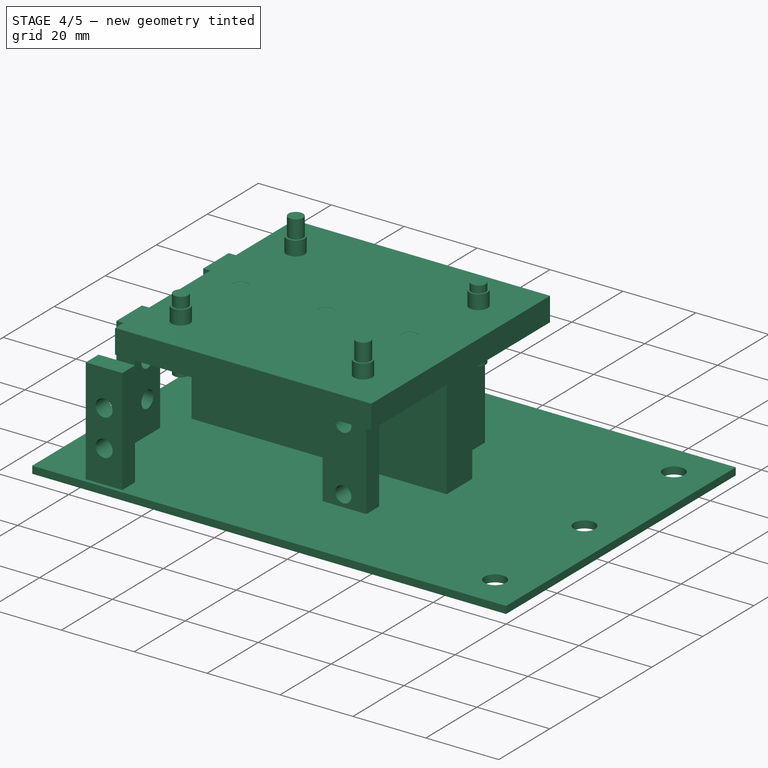
[diagram: stage 4 of 5 — iso view after this stage's code; geometry added in this stage tinted green]
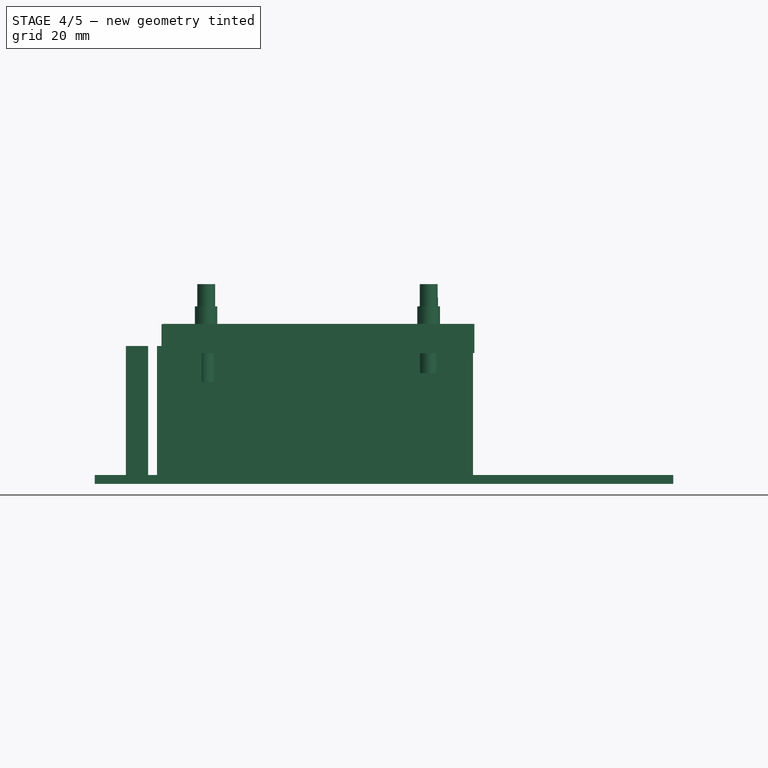
[diagram: stage 4 of 5 — front view after this stage's code; geometry added in this stage tinted green]
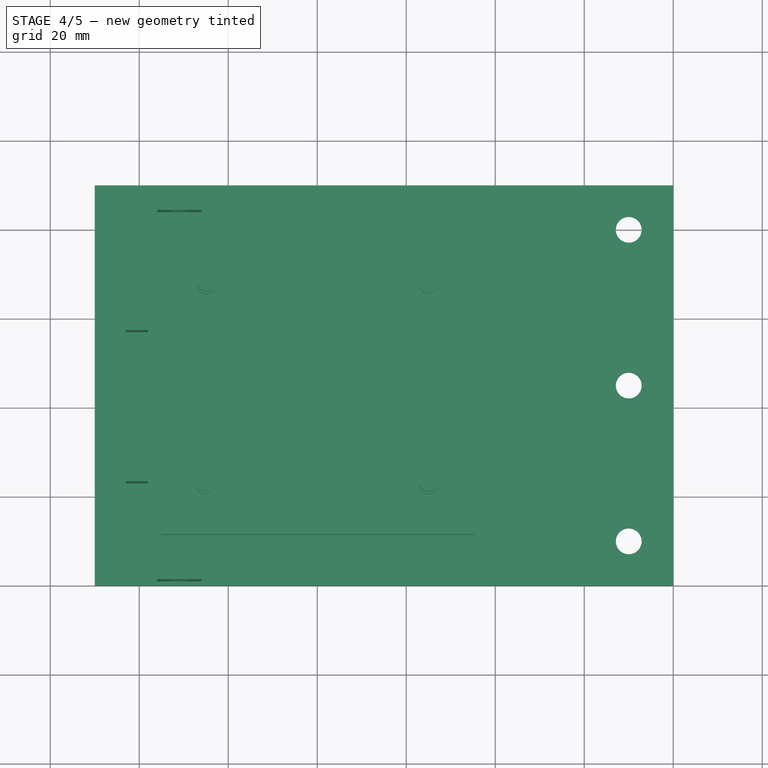
[diagram: stage 4 of 5 — top view after this stage's code; geometry added in this stage tinted green]
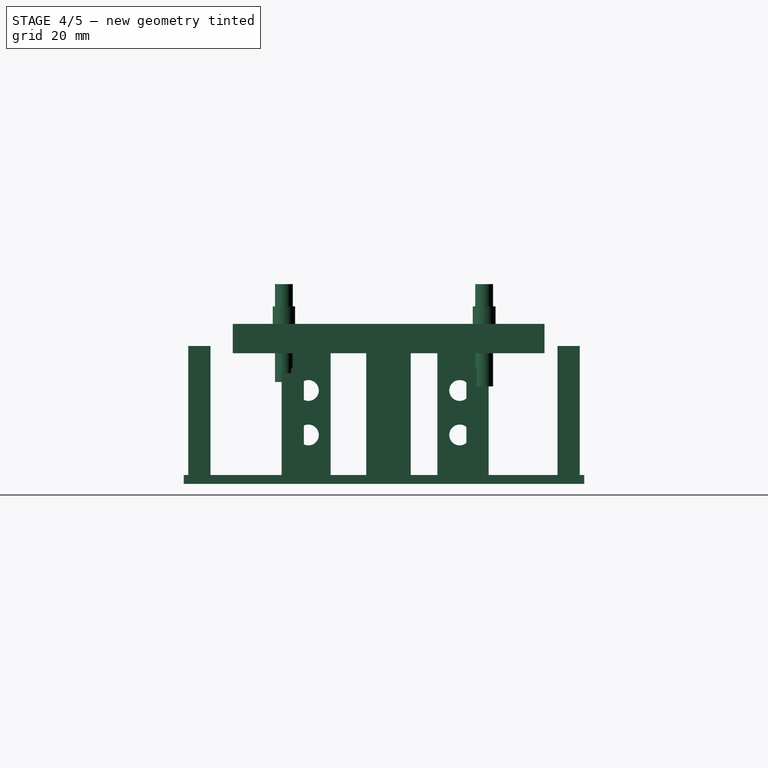
[diagram: stage 4 of 5 — right view after this stage's code; geometry added in this stage tinted green]
FEATURE [Sketcher::SketchObject] Sketch037
  FullyConstrained = false
  Placement = pos=(0,0,0) rot=(1,0,0;1.5708rad)
  sketch-geometry (4):
    g0: LineSegment StartX=-140 StartY=10 StartZ=0 EndX=-130 EndY=10 EndZ=0
    g1: LineSegment StartX=-130 StartY=10 StartZ=0 EndX=-130 EndY=40 EndZ=0
    g2: LineSegment StartX=-130 StartY=40 StartZ=0 EndX=-140 EndY=40 EndZ=0
    g3: LineSegment StartX=-140 StartY=40 StartZ=0 EndX=-140 EndY=10 EndZ=0
  constraints (8):
    c: Coincident(g0,g1)
    c: Coincident(g1,g2)
    c: Coincident(g2,g3)
    c: Coincident(g3,g0)
    c: Horizontal(g0)
    c: Horizontal(g2)
    c: Vertical(g1)
    c: Vertical(g3)
FEATURE [Part::Extrusion] Extrude038  label="Soporte001"
  Base = -> Sketch037
  Dir = (0,-1,-3e-16)
  DirMode = 2
  FaceMakerClass = Part::FaceMakerBullseye
  LengthFwd = 5
  LengthRev = 0
  Placement = pos=(-96,-107,0) rot=(0,0,-1;1.5708rad)
  Solid = true
  Symmetric = false
FEATURE [Sketcher::SketchObject] Sketch038
  FullyConstrained = false
  MapMode = 5
  Placement = pos=(-101,-107,-1.1e-15) rot=(0.57735,-0.57735,-0.57735;2.0944rad)
  Support = -> [Extrude038]
  sketch-geometry (4):
    g0: LineSegment StartX=-140.012 StartY=30 StartZ=0 EndX=-130 EndY=30 EndZ=0
    g1: Circle CenterX=-135.006 CenterY=30 CenterZ=0 NormalX=0 NormalY=0 NormalZ=1 AngleXU=0 Radius=2.34
    g2: LineSegment StartX=-140 StartY=20 StartZ=0 EndX=-130.017 EndY=20 EndZ=0
    g3: Circle CenterX=-135.008 CenterY=20 CenterZ=0 NormalX=0 NormalY=0 NormalZ=1 AngleXU=0 Radius=2.34
  constraints (6):
    c: Horizontal(g0)
    c: Symmetric(g0,g0,g1)
    c: Horizontal(g2)
    c: Symmetric(g2,g2,g3)
    c: Equal(g1,g3)
    c: Diameter(g3) = 4.68
FEATURE [Part::Extrusion] Extrude039  label="Tornillos005"
  Base = -> Sketch038
  Dir = (-1,2e-16,-2e-16)
  DirMode = 2
  FaceMakerClass = Part::FaceMakerBullseye
  LengthFwd = 20
  LengthRev = 0
  Placement = pos=(17,0,0) rot=(0,0,1;0rad)
  Solid = true
  Symmetric = false
FEATURE [Sketcher::SketchObject] Sketch045
  FullyConstrained = false
  Placement = pos=(0,0,0) rot=(1,0,0;1.5708rad)
  sketch-geometry (4):
    g0: LineSegment StartX=-140 StartY=10 StartZ=0 EndX=-130 EndY=10 EndZ=0
    g1: LineSegment StartX=-130 StartY=10 StartZ=0 EndX=-130 EndY=40 EndZ=0
    g2: LineSegment StartX=-130 StartY=40 StartZ=0 EndX=-140 EndY=40 EndZ=0
    g3: LineSegment StartX=-140 StartY=40 StartZ=0 EndX=-140 EndY=10 EndZ=0
  constraints (8):
    c: Coincident(g0,g1)
    c: Coincident(g1,g2)
    c: Coincident(g2,g3)
    c: Coincident(g3,g0)
    c: Horizontal(g0)
    c: Horizontal(g2)
    c: Vertical(g1)
    c: Vertical(g3)
FEATURE [Part::Extrusion] Extrude047  label="Soporte006"
  Base = -> Sketch045
  Dir = (0,-1,-3e-16)
  DirMode = 2
  FaceMakerClass = Part::FaceMakerBullseye
  LengthFwd = 5
  LengthRev = 0
  Placement = pos=(-96,-107,0) rot=(0,0,-1;1.5708rad)
  Solid = true
  Symmetric = false
FEATURE [Sketcher::SketchObject] Sketch046
  FullyConstrained = false
  MapMode = 5
  Placement = pos=(-101,-107,-1.1e-15) rot=(0.57735,-0.57735,-0.57735;2.0944rad)
  Support = -> [Extrude047]
  sketch-geometry (4):
    g0: LineSegment StartX=-140.012 StartY=30 StartZ=0 EndX=-130 EndY=30 EndZ=0
    g1: Circle CenterX=-135.006 CenterY=30 CenterZ=0 NormalX=0 NormalY=0 NormalZ=1 AngleXU=0 Radius=2.34
    g2: LineSegment StartX=-140 StartY=20 StartZ=0 EndX=-130.017 EndY=20 EndZ=0
    g3: Circle CenterX=-135.008 CenterY=20 CenterZ=0 NormalX=0 NormalY=0 NormalZ=1 AngleXU=0 Radius=2.34
  constraints (6):
    c: Horizontal(g0)
    c: Symmetric(g0,g0,g1)
    c: Horizontal(g2)
    c: Symmetric(g2,g2,g3)
    c: Equal(g1,g3)
    c: Diameter(g3) = 4.68
FEATURE [Part::Extrusion] Extrude048  label="Tornillos009"
  Base = -> Sketch046
  Dir = (-1,2e-16,-2e-16)
  DirMode = 2
  FaceMakerClass = Part::FaceMakerBullseye
  LengthFwd = 20
  LengthRev = 0
  Placement = pos=(17,0,0) rot=(0,0,1;0rad)
  Solid = true
  Symmetric = false
FEATURE [Sketcher::SketchObject] Sketch051
  FullyConstrained = false
  MapMode = 5
  Placement = pos=(0,0,2) rot=(0,0,1;0rad)
  Support = -> [Extrude051]
  sketch-geometry (4):
    g0: LineSegment StartX=120 StartY=80.0205 StartZ=0 EndX=120 EndY=10 EndZ=0
    g1: Circle CenterX=120 CenterY=80.0205 CenterZ=0 NormalX=0 NormalY=0 NormalZ=1 AngleXU=0 Radius=2.9
    g2: Circle CenterX=120 CenterY=45.0103 CenterZ=0 NormalX=0 NormalY=0 NormalZ=1 AngleXU=0 Radius=2.9
    g3: Circle CenterX=120 CenterY=10 CenterZ=0 NormalX=0 NormalY=0 NormalZ=1 AngleXU=0 Radius=2.9
  constraints (7):
    c: Vertical(g0)
    c: Coincident(g1,g0)
    c: Coincident(g3,g0)
    c: Symmetric(g0,g0,g2)
    c: Diameter(g1) = 5.8
    c: Equal(g1,g2)
    c: Equal(g2,g3)
FEATURE [Sketcher::SketchObject] Sketch052
  FullyConstrained = false
  Placement = pos=(0,0,0) rot=(1,0,0;1.5708rad)
  sketch-geometry (8):
    g0: LineSegment StartX=-100 StartY=9.99571 StartZ=0 EndX=-100 EndY=37.3557 EndZ=0
    g1: LineSegment StartX=-100 StartY=37.3557 StartZ=0 EndX=-130 EndY=37.3557 EndZ=0
    g2: LineSegment StartX=-130 StartY=37.3557 StartZ=0 EndX=-130 EndY=43.9157 EndZ=0
    g3: LineSegment StartX=-130 StartY=43.9157 StartZ=0 EndX=-60 EndY=43.9157 EndZ=0
    g4: LineSegment StartX=-60 StartY=43.9157 StartZ=0 EndX=-60 EndY=37.3557 EndZ=0
    g5: LineSegment StartX=-60 StartY=37.3557 StartZ=0 EndX=-90 EndY=37.3557 EndZ=0
    g6: LineSegment StartX=-90 StartY=37.3557 StartZ=0 EndX=-90 EndY=9.99571 EndZ=0
    g7: LineSegment StartX=-90 StartY=9.99571 StartZ=0 EndX=-100 EndY=9.99571 EndZ=0
  constraints (20):
    c: Vertical(g0)
    c: Coincident(g1,g0)
    c: Horizontal(g1)
    c: Coincident(g1,g2)
    c: Vertical(g2)
    c: Coincident(g2,g3)
    c: Horizontal(g3)
    c: Coincident(g3,g4)
    c: Vertical(g4)
    c: Coincident(g4,g5)
    c: Horizontal(g5)
    c: Coincident(g5,g6)
    c: Vertical(g6)
    c: Coincident(g6,g7)
    c: Coincident(g7,g0)
    c: Horizontal(g7)
    c: Equal(g6,g0)
    c: DistanceY(g6,g6) = 27.36
    c: DistanceY(g4,g4) = 6.56
    c: DistanceX(g3,g3) = 70
FEATURE [Part::Extrusion] Extrude054  label="Tornillos012"
  Base = -> Sketch015
  Dir = (-3e-16,0,1)
  DirMode = 2
  FaceMakerClass = Part::FaceMakerBullseye
  LengthFwd = 8
  LengthRev = 0
  Placement = pos=(0,0,-4) rot=(0,0,1;0rad)
  Solid = true
  Symmetric = false
FEATURE [Part::Extrusion] Extrude055  label="Tornillo005"
  Base = -> Sketch016
  Dir = (-3e-16,0,1)
  DirMode = 2
  FaceMakerClass = Part::FaceMakerBullseye
  LengthFwd = 20
  LengthRev = 0
  Placement = pos=(50.1,0,-18) rot=(0,0,1;0rad)
  Solid = true
  Symmetric = false
FEATURE [Part::Extrusion] Extrude056  label="Tornillo006"
  Base = -> Sketch016
  Dir = (-3e-16,0,1)
  DirMode = 2
  FaceMakerClass = Part::FaceMakerBullseye
  LengthFwd = 20
  LengthRev = 0
  Placement = pos=(0,0,-15) rot=(0,0,1;0rad)
  Solid = true
  Symmetric = false
FEATURE [Part::Extrusion] Extrude057  label="Tornillo007"
  Base = -> Sketch016
  Dir = (-3e-16,0,1)
  DirMode = 2
  FaceMakerClass = Part::FaceMakerBullseye
  LengthFwd = 20
  LengthRev = 0
  Placement = pos=(50,-45,-15) rot=(0,0,1;0rad)
  Solid = true
  Symmetric = false
FEATURE [Part::Extrusion] Extrude058  label="Tornillo008"
  Base = -> Sketch016
  Dir = (-3e-16,0,1)
  DirMode = 2
  FaceMakerClass = Part::FaceMakerBullseye
  LengthFwd = 20
  LengthRev = 0
  Placement = pos=(0,-45,-17) rot=(0,0,1;0rad)
  Solid = true
  Symmetric = false
FEATURE [Part::Cut] Cut026  label="Soporte009"
  Base = -> Extrude047
  Placement = pos=(-119,-95,-3) rot=(0,0,-1;1.5708rad)
  Refine = true
  Tool = -> Extrude048
FEATURE [Part::Cut] Cut027  label="Soporte010"
  Base = -> Extrude038
  Placement = pos=(-2,0,-3) rot=(0,0,1;0rad)
  Refine = true
  Tool = -> Extrude039
FEATURE [Sketcher::SketchObject] Sketch056
  FullyConstrained = false
  Placement = pos=(0,0,0) rot=(1,0,0;1.5708rad)
  sketch-geometry (4):
    g0: LineSegment StartX=-45.7334 StartY=0 StartZ=0 EndX=-33.7334 EndY=0 EndZ=0
    g1: LineSegment StartX=-33.7334 StartY=0 StartZ=0 EndX=-33.7334 EndY=26.0118 EndZ=0
    g2: LineSegment StartX=-33.7334 StartY=26.0118 StartZ=0 EndX=-45.7334 EndY=26.0118 EndZ=0
    g3: LineSegment StartX=-45.7334 StartY=26.0118 StartZ=0 EndX=-45.7334 EndY=0 EndZ=0
  constraints (10):
    c: Coincident(g0,g1)
    c: Coincident(g1,g2)
    c: Coincident(g2,g3)
    c: Coincident(g3,g0)
    c: Horizontal(g0)
    c: Horizontal(g2)
    c: Vertical(g1)
    c: Vertical(g3)
    c: PointOnObject(g0,g-1)
    c: DistanceX(g2,g2) = 12
FEATURE [Part::Extrusion] Extrude062
  Base = -> Sketch056
  Dir = (0,-1,2e-16)
  DirMode = 2
  FaceMakerClass = Part::FaceMakerBullseye
  LengthFwd = 5
  LengthRev = 0
  Solid = true
  Symmetric = false
FEATURE [Sketcher::SketchObject] Sketch057
  FullyConstrained = false
  Placement = pos=(0,0,0) rot=(1,0,0;1.5708rad)
  sketch-geometry (1):
    g0: Circle CenterX=-30.2422 CenterY=20.0161 CenterZ=0 NormalX=0 NormalY=0 NormalZ=1 AngleXU=0 Radius=2.21
  constraints (1):
    c: Diameter(g0) = 4.42
FEATURE [Part::Extrusion] Extrude063
  Base = -> Sketch057
  Dir = (0,-1,-3e-16)
  DirMode = 2
  FaceMakerClass = Part::FaceMakerBullseye
  LengthFwd = 10
  LengthRev = 0
  Placement = pos=(-9.8,3,2.68) rot=(0,0,1;0rad)
  Solid = true
  Symmetric = false
FEATURE [Part::Cut] Cut034
  Base = -> Extrude062
  Refine = true
  Tool = -> Extrude063
FEATURE [Sketcher::SketchObject] Sketch058
  FullyConstrained = false
  Placement = pos=(0,0,0) rot=(1,0,0;1.5708rad)
  sketch-geometry (1):
    g0: Circle CenterX=-30.2422 CenterY=20.0161 CenterZ=0 NormalX=0 NormalY=0 NormalZ=1 AngleXU=0 Radius=2.21
  constraints (1):
    c: Diameter(g0) = 4.42
FEATURE [Part::Extrusion] Extrude064
  Base = -> Sketch058
  Dir = (0,-1,-3e-16)
  DirMode = 2
  FaceMakerClass = Part::FaceMakerBullseye
  LengthFwd = 10
  LengthRev = 0
  Placement = pos=(-9.8,5,-14.82) rot=(0,0,1;0rad)
  Solid = true
  Symmetric = false
FEATURE [Part::Cut] Cut035
  Base = -> Cut034
  Placement = pos=(0,68.5,6) rot=(0,0,1;0rad)
  Refine = true
  Tool = -> Extrude064
FEATURE [Part::MultiFuse] Fusion010
  Refine = true
  Shapes = -> [Cut021,Extrude053]
FEATURE [Part::MultiFuse] Fusion011
  Refine = true
  Shapes = -> [Fusion010,Extrude054]
FEATURE [Part::Cut] Cut022
  Base = -> Fusion011
  Refine = true
  Tool = -> Extrude055
FEATURE [Part::Cut] Cut023
  Base = -> Cut022
  Refine = true
  Tool = -> Extrude056
FEATURE [Part::Cut] Cut024
  Base = -> Cut023
  Refine = true
  Tool = -> Extrude057
FEATURE [Part::Cut] Cut025
  Base = -> Cut024
  Refine = true
  Tool = -> Extrude058
FEATURE [Part::MultiFuse] Fusion012
  Refine = true
  Shapes = -> [Cut025,Cut026]
FEATURE [Part::MultiFuse] Fusion013
  Refine = true
  Shapes = -> [Fusion012,Cut027]
FEATURE [Part::MultiFuse] Fusion014
  Refine = true
  Shapes = -> [Fusion013,Cut028]
FEATURE [Part::MultiFuse] Fusion015
  Refine = true
  Shapes = -> [Fusion014,Cut029]
FEATURE [Part::MultiFuse] Fusion016
  Refine = true
  Shapes = -> [Fusion015,Cut033]
FEATURE [Part::MultiFuse] Fusion017  label="no"
  Refine = true
  Shapes = -> [Fusion016,Cut035]
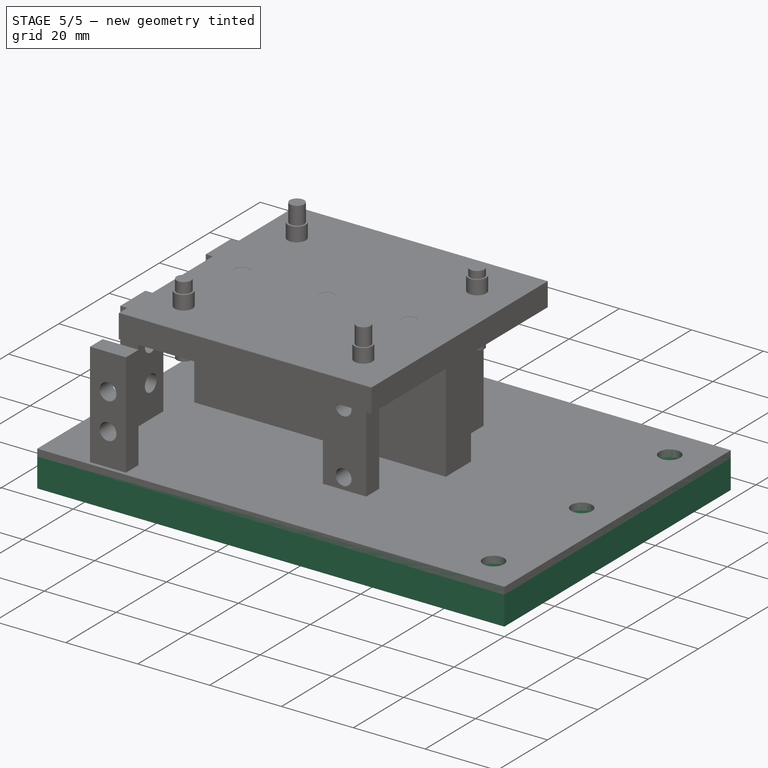
[diagram: stage 5 of 5 — iso view after this stage's code; geometry added in this stage tinted green]
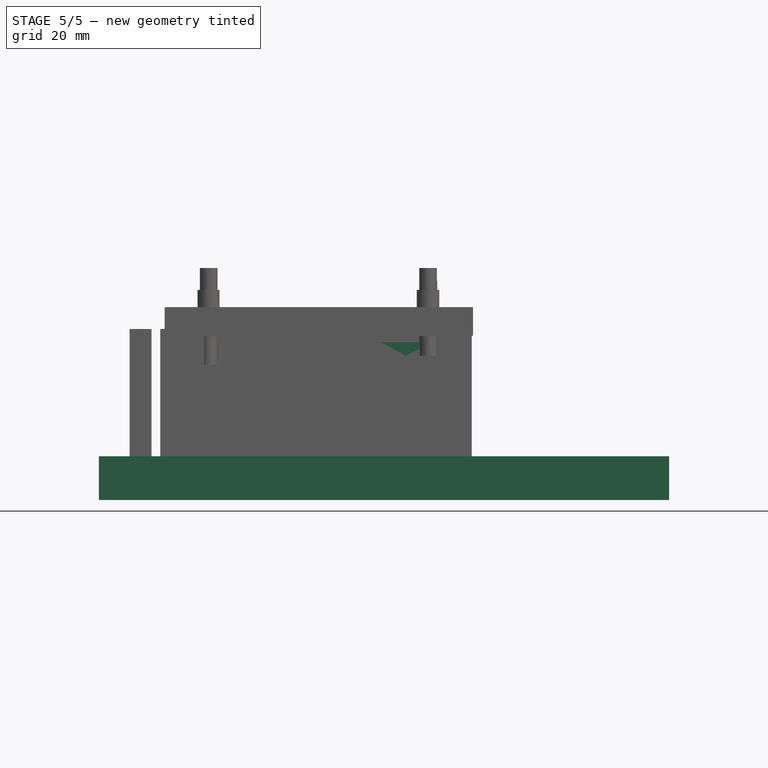
[diagram: stage 5 of 5 — front view after this stage's code; geometry added in this stage tinted green]
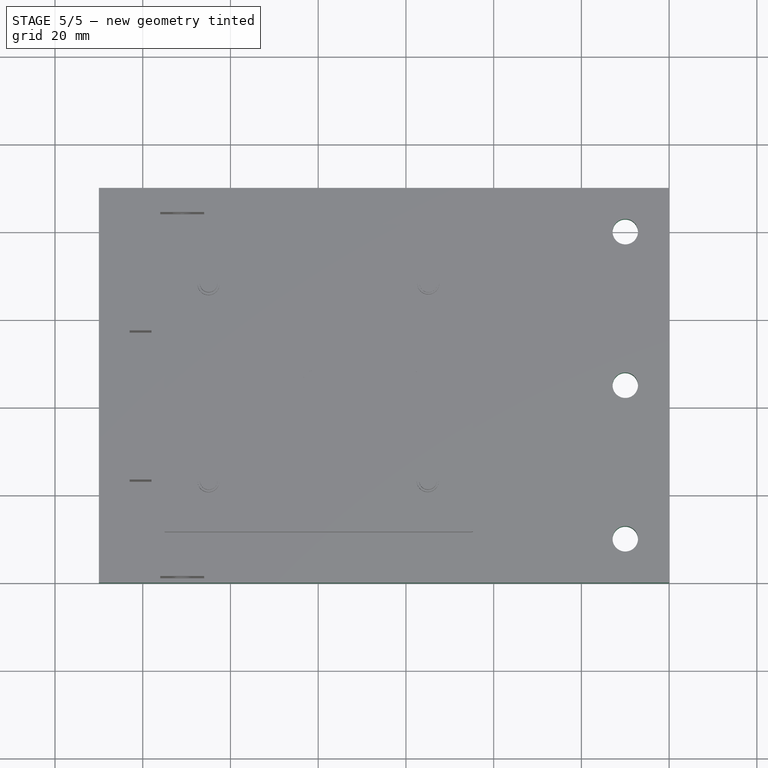
[diagram: stage 5 of 5 — top view after this stage's code; geometry added in this stage tinted green]
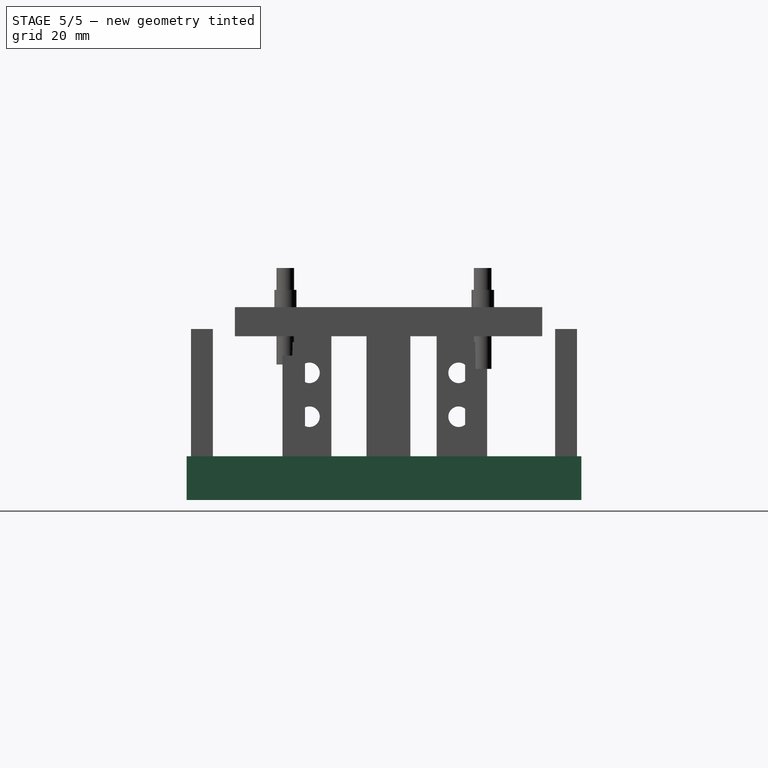
[diagram: stage 5 of 5 — right view after this stage's code; geometry added in this stage tinted green]
FEATURE [Sketcher::SketchObject] Sketch001
  FullyConstrained = false
  sketch-geometry (6):
    g0: LineSegment StartX=0 StartY=0 StartZ=0 EndX=30 EndY=0 EndZ=0
    g1: LineSegment StartX=30 StartY=0 StartZ=0 EndX=120 EndY=10 EndZ=0
    g2: LineSegment StartX=0 StartY=0 StartZ=0 EndX=0 EndY=90 EndZ=0
    g3: LineSegment StartX=0 StartY=90 StartZ=0 EndX=30 EndY=90 EndZ=0
    g4: LineSegment StartX=30 StartY=90 StartZ=0 EndX=120 EndY=80 EndZ=0
    g5: LineSegment StartX=120 StartY=80 StartZ=0 EndX=120 EndY=10 EndZ=0
  constraints (11):
    c: Coincident(g-1,g0)
    c: PointOnObject(g0,g-1)
    c: Coincident(g0,g1)
    c: Coincident(g0,g2)
    c: PointOnObject(g2,g-2)
    c: Coincident(g2,g3)
    c: Horizontal(g3)
    c: Coincident(g3,g4)
    c: Coincident(g4,g5)
    c: Coincident(g5,g1)
    c: Vertical(g5)
FEATURE [Part::Extrusion] Extrude001  label="Base delantera alta"
  Base = -> Sketch001
  Dir = (0,0,1)
  DirMode = 2
  FaceMakerClass = Part::FaceMakerBullseye
  LengthFwd = 10
  LengthRev = 0
  Solid = true
  Symmetric = false
FEATURE [Sketcher::SketchObject] Sketch002
  FullyConstrained = false
  sketch-geometry (6):
    g0: LineSegment StartX=0 StartY=0 StartZ=0 EndX=30 EndY=0 EndZ=0
    g1: LineSegment StartX=30 StartY=0 StartZ=0 EndX=120 EndY=10 EndZ=0
    g2: LineSegment StartX=0 StartY=0 StartZ=0 EndX=0 EndY=90 EndZ=0
    g3: LineSegment StartX=0 StartY=90 StartZ=0 EndX=30 EndY=90 EndZ=0
    g4: LineSegment StartX=30 StartY=90 StartZ=0 EndX=120 EndY=80 EndZ=0
    g5: LineSegment StartX=120 StartY=80 StartZ=0 EndX=120 EndY=10 EndZ=0
  constraints (11):
    c: Coincident(g-1,g0)
    c: PointOnObject(g0,g-1)
    c: Coincident(g0,g1)
    c: Coincident(g0,g2)
    c: PointOnObject(g2,g-2)
    c: Coincident(g2,g3)
    c: Horizontal(g3)
    c: Coincident(g3,g4)
    c: Coincident(g4,g5)
    c: Coincident(g5,g1)
    c: Vertical(g5)
FEATURE [Part::Extrusion] Extrude002  label="Base delantera baja"
  Base = -> Sketch002
  Dir = (0,0,1)
  DirMode = 2
  FaceMakerClass = Part::FaceMakerBullseye
  LengthFwd = 10
  LengthRev = 0
  Solid = true
  Symmetric = false
FEATURE [Sketcher::SketchObject] Sketch003
  FullyConstrained = false
  MapMode = 5
  Placement = pos=(0,0,10) rot=(0,0,1;0rad)
  Support = -> [Extrude002]
  sketch-geometry (4):
    g0: Circle CenterX=10 CenterY=80.0167 CenterZ=0 NormalX=0 NormalY=0 NormalZ=1 AngleXU=0 Radius=2.9
    g1: Circle CenterX=10 CenterY=45.0083 CenterZ=0 NormalX=0 NormalY=0 NormalZ=1 AngleXU=0 Radius=2.9
    g2: Circle CenterX=10 CenterY=10 CenterZ=0 NormalX=0 NormalY=0 NormalZ=1 AngleXU=0 Radius=2.9
    g3: LineSegment StartX=10 StartY=10 StartZ=0 EndX=10 EndY=80.0167 EndZ=0
  constraints (7):
    c: Coincident(g3,g2)
    c: Coincident(g3,g0)
    c: Vertical(g3)
    c: Symmetric(g3,g3,g1)
    c: Diameter(g0) = 5.8
    c: Equal(g0,g1)
    c: Equal(g1,g2)
FEATURE [Part::Extrusion] Extrude004  label="Tornillos001"
  Base = -> Sketch003
  Dir = (0,0,1)
  DirMode = 2
  FaceMakerClass = Part::FaceMakerBullseye
  LengthFwd = 50
  LengthRev = 0
  Placement = pos=(0,0,-21) rot=(0,0,1;0rad)
  Solid = true
  Symmetric = false
FEATURE [Part::Cut] Cut001  label="Base delantera alta001"
  Base = -> Extrude001
  Placement = pos=(0,0,20) rot=(0,0,1;0rad)
  Refine = true
  Tool = -> Extrude004
FEATURE [Sketcher::SketchObject] Sketch016
  FullyConstrained = false
  MapMode = 5
  Placement = pos=(-1.29e-14,0,45.9132) rot=(0,0,1;0rad)
  Support = -> [Fusion001]
  sketch-geometry (1):
    g0: Circle CenterX=-84.9626 CenterY=67.5048 CenterZ=0 NormalX=0 NormalY=0 NormalZ=1 AngleXU=0 Radius=2.005
  constraints (1):
    c: Diameter(g0) = 4.01
FEATURE [Part::Extrusion] Extrude016  label="Tornillo001"
  Base = -> Sketch016
  Dir = (-3e-16,0,1)
  DirMode = 2
  FaceMakerClass = Part::FaceMakerBullseye
  LengthFwd = 20
  LengthRev = 0
  Placement = pos=(50.1,0,-18) rot=(0,0,1;0rad)
  Solid = true
  Symmetric = false
FEATURE [Part::Cut] Cut005
  Base = -> Fusion001
  Refine = true
  Tool = -> Extrude016
FEATURE [Part::Extrusion] Extrude017  label="Tornillo002"
  Base = -> Sketch016
  Dir = (-3e-16,0,1)
  DirMode = 2
  FaceMakerClass = Part::FaceMakerBullseye
  LengthFwd = 20
  LengthRev = 0
  Placement = pos=(0,0,-15) rot=(0,0,1;0rad)
  Solid = true
  Symmetric = false
FEATURE [Part::Cut] Cut006
  Base = -> Cut005
  Refine = true
  Tool = -> Extrude017
FEATURE [Part::Extrusion] Extrude018  label="Tornillo003"
  Base = -> Sketch016
  Dir = (-3e-16,0,1)
  DirMode = 2
  FaceMakerClass = Part::FaceMakerBullseye
  LengthFwd = 20
  LengthRev = 0
  Placement = pos=(0,-45,-17) rot=(0,0,1;0rad)
  Solid = true
  Symmetric = false
FEATURE [Part::Extrusion] Extrude019  label="Tornillo004"
  Base = -> Sketch016
  Dir = (-3e-16,0,1)
  DirMode = 2
  FaceMakerClass = Part::FaceMakerBullseye
  LengthFwd = 20
  LengthRev = 0
  Placement = pos=(50,-45,-15) rot=(0,0,1;0rad)
  Solid = true
  Symmetric = false
FEATURE [Part::Cut] Cut007
  Base = -> Cut006
  Refine = true
  Tool = -> Extrude019
FEATURE [Part::Cut] Cut008  label="Base trasera003"
  Base = -> Cut007
  Refine = true
  Tool = -> Extrude018
FEATURE [Sketcher::SketchObject] Sketch017
  FullyConstrained = false
  MapMode = 5
  Placement = pos=(0,0,30) rot=(0,0,1;0rad)
  Support = -> [Cut001]
  sketch-geometry (6):
    g0: Circle CenterX=74.7921 CenterY=44.0089 CenterZ=0 NormalX=0 NormalY=0 NormalZ=1 AngleXU=0 Radius=2.55289
    g1: Circle CenterX=111.059 CenterY=44.0927 CenterZ=0 NormalX=0 NormalY=0 NormalZ=1 AngleXU=0 Radius=2.55289
    g2: Circle CenterX=60.0507 CenterY=78.8522 CenterZ=0 NormalX=0 NormalY=0 NormalZ=1 AngleXU=0 Radius=2.4438
    g3: Circle CenterX=29.1441 CenterY=78.6009 CenterZ=0 NormalX=0 NormalY=0 NormalZ=1 AngleXU=0 Radius=2.4438
    g4: Circle CenterX=14.5702 CenterY=25.2471 CenterZ=0 NormalX=0 NormalY=0 NormalZ=1 AngleXU=0 Radius=2.4438
    g5: Circle CenterX=64.4061 CenterY=25.4146 CenterZ=0 NormalX=0 NormalY=0 NormalZ=1 AngleXU=0 Radius=2.4438
  constraints (4):
    c: Equal(g0,g1)
    c: Equal(g2,g3)
    c: Equal(g3,g4)
    c: Equal(g4,g5)
FEATURE [Part::Extrusion] Extrude020  label="Base tornillos"
  Base = -> Sketch017
  Dir = (0,0,1)
  DirMode = 2
  FaceMakerClass = Part::FaceMakerBullseye
  LengthFwd = 10
  LengthRev = 0
  Placement = pos=(0,0,-4) rot=(0,0,1;0rad)
  Solid = true
  Symmetric = false
FEATURE [Part::MultiFuse] Fusion002
  Refine = true
  Shapes = -> [Cut001,Extrude020]
FEATURE [Sketcher::SketchObject] Sketch018
  FullyConstrained = false
  MapMode = 5
  Placement = pos=(0,0,36) rot=(0,0,1;0rad)
  Support = -> [Fusion002]
  sketch-geometry (5):
    g0: Circle CenterX=74.7892 CenterY=44.0624 CenterZ=0 NormalX=0 NormalY=0 NormalZ=1 AngleXU=0 Radius=1.95541
    g1: Circle CenterX=111.024 CenterY=44.1108 CenterZ=0 NormalX=0 NormalY=0 NormalZ=1 AngleXU=0 Radius=1.95541
    g2: Circle CenterX=29.1598 CenterY=78.6822 CenterZ=0 NormalX=0 NormalY=0 NormalZ=1 AngleXU=0 Radius=1.945
    g3: Circle CenterX=60.0393 CenterY=78.8506 CenterZ=0 NormalX=0 NormalY=0 NormalZ=1 AngleXU=0 Radius=1.94571
    g4: Circle CenterX=64.4121 CenterY=25.4887 CenterZ=0 NormalX=0 NormalY=0 NormalZ=1 AngleXU=0 Radius=1.94571
  constraints (3):
    c: Equal(g0,g1)
    c: Equal(g3,g4)
    c: Diameter(g2) = 3.89
FEATURE [Part::Extrusion] Extrude021
  Base = -> Sketch018
  Dir = (0,0,1)
  DirMode = 2
  FaceMakerClass = Part::FaceMakerBullseye
  LengthFwd = 30
  LengthRev = 0
  Placement = pos=(0,0,-22) rot=(0,0,1;0rad)
  Solid = true
  Symmetric = false
FEATURE [Part::Cut] Cut009  label="Base delantera superior"
  Base = -> Fusion002
  Refine = true
  Tool = -> Extrude021
FEATURE [Sketcher::SketchObject] Sketch019
  FullyConstrained = false
  MapMode = 5
  Placement = pos=(0,0,30) rot=(0,0,1;0rad)
  Support = -> [Cut009]
  sketch-geometry (3):
    g0: LineSegment StartX=30 StartY=90 StartZ=0 EndX=120 EndY=80 EndZ=0
    g1: LineSegment StartX=120 StartY=80 StartZ=0 EndX=120 EndY=10 EndZ=0
    g2: LineSegment StartX=120 StartY=10 StartZ=0 EndX=30 EndY=0 EndZ=0
  constraints (4):
    c: Coincident(g0,g1)
    c: Vertical(g1)
    c: Coincident(g1,g2)
    c: PointOnObject(g2,g-1)
FEATURE [Part::Extrusion] Extrude022  label="Carcasa"
  Base = -> Sketch019
  Dir = (0,0,1)
  DirMode = 2
  FaceMakerClass = Part::FaceMakerBullseye
  LengthFwd = 40
  LengthRev = 0
  Solid = false
  Symmetric = false
FEATURE [Part::Cut] Cut019
  Placement = pos=(-71.8,35,20) rot=(1,0,0;1.5708rad)
  Refine = true
  Tool = -> Extrude022
FEATURE [Part::Cut] Cut020
  Placement = pos=(-71.8,78.6,20) rot=(1,0,0;1.5708rad)
  Refine = true
  Tool = -> Extrude022
FEATURE [Part::Cut] Cut010  label="Soporte002"
  Base = -> Extrude038
  Placement = pos=(-2,0,-3) rot=(0,0,1;0rad)
  Refine = true
  Tool = -> Extrude039
FEATURE [Part::Cut] Cut011  label="Soporte003"
  Base = -> Extrude041
  Placement = pos=(-2,34,-3) rot=(0,0,1;0rad)
  Refine = true
  Tool = -> Extrude042
FEATURE [Part::Cut] Cut017  label="Soporte005"
  Base = -> Extrude047
  Placement = pos=(-119,-95,-3) rot=(0,0,-1;1.5708rad)
  Refine = true
  Tool = -> Extrude048
FEATURE [Part::MultiFuse] Fusion004
  Refine = true
  Shapes = -> [Cut008,Cut017]
FEATURE [Part::MultiFuse] Fusion005
  Refine = true
  Shapes = -> [Fusion004,Cut010]
FEATURE [Part::MultiFuse] Fusion006
  Refine = true
  Shapes = -> [Fusion005,Cut011]
FEATURE [Part::Cut] Cut018  label="Soporte007"
  Base = -> Extrude049
  Placement = pos=(-119,-12,-3) rot=(0,0,-1;1.5708rad)
  Refine = true
  Tool = -> Extrude050
FEATURE [Part::MultiFuse] Fusion007
  Refine = true
  Shapes = -> [Fusion006,Cut018]
FEATURE [Part::MultiFuse] Fusion008
  Refine = true
  Shapes = -> [Fusion007,Cut019]
FEATURE [Part::MultiFuse] Fusion009  label="no001"
  Refine = true
  Shapes = -> [Fusion008,Cut020]
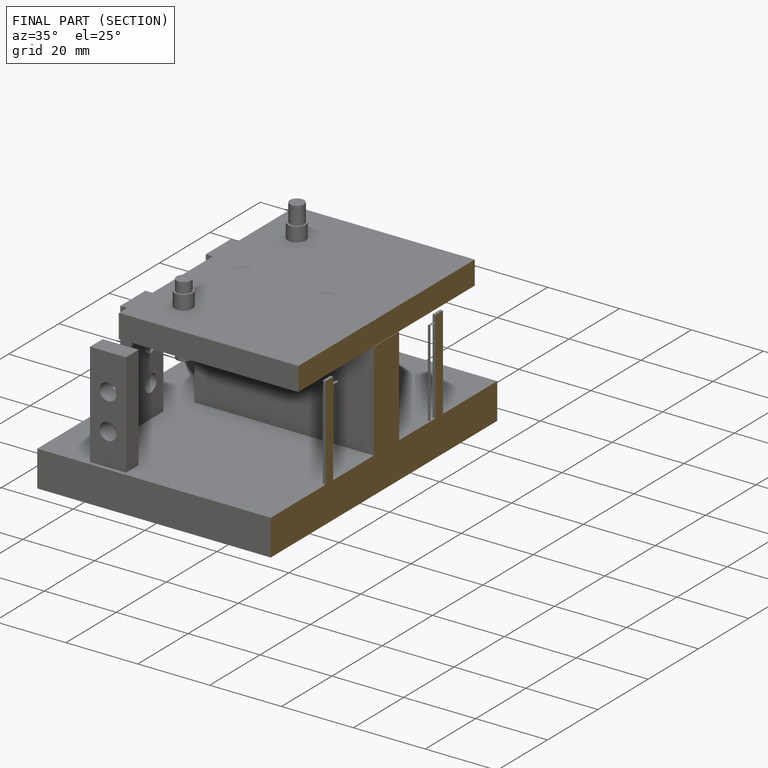
[diagram: finished part — half-section view (interior)]
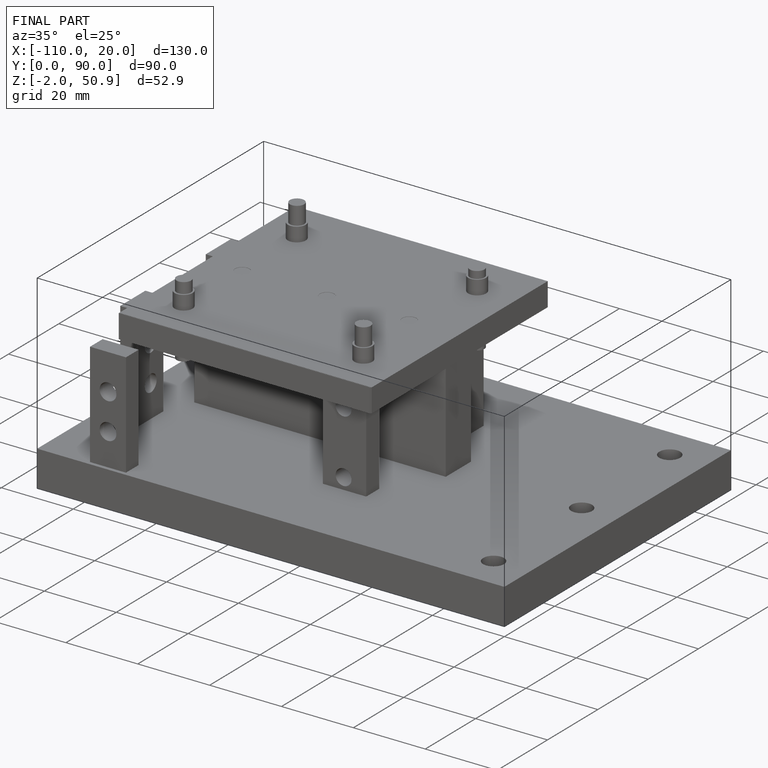
[diagram: finished part — iso view with bounding-box wireframe]
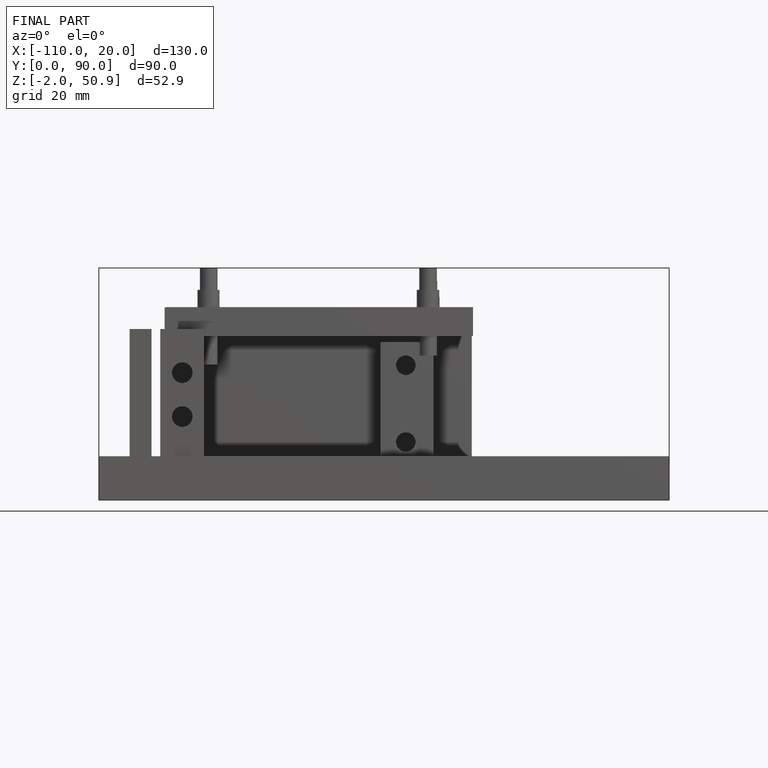
[diagram: finished part — front view with bounding-box wireframe]
